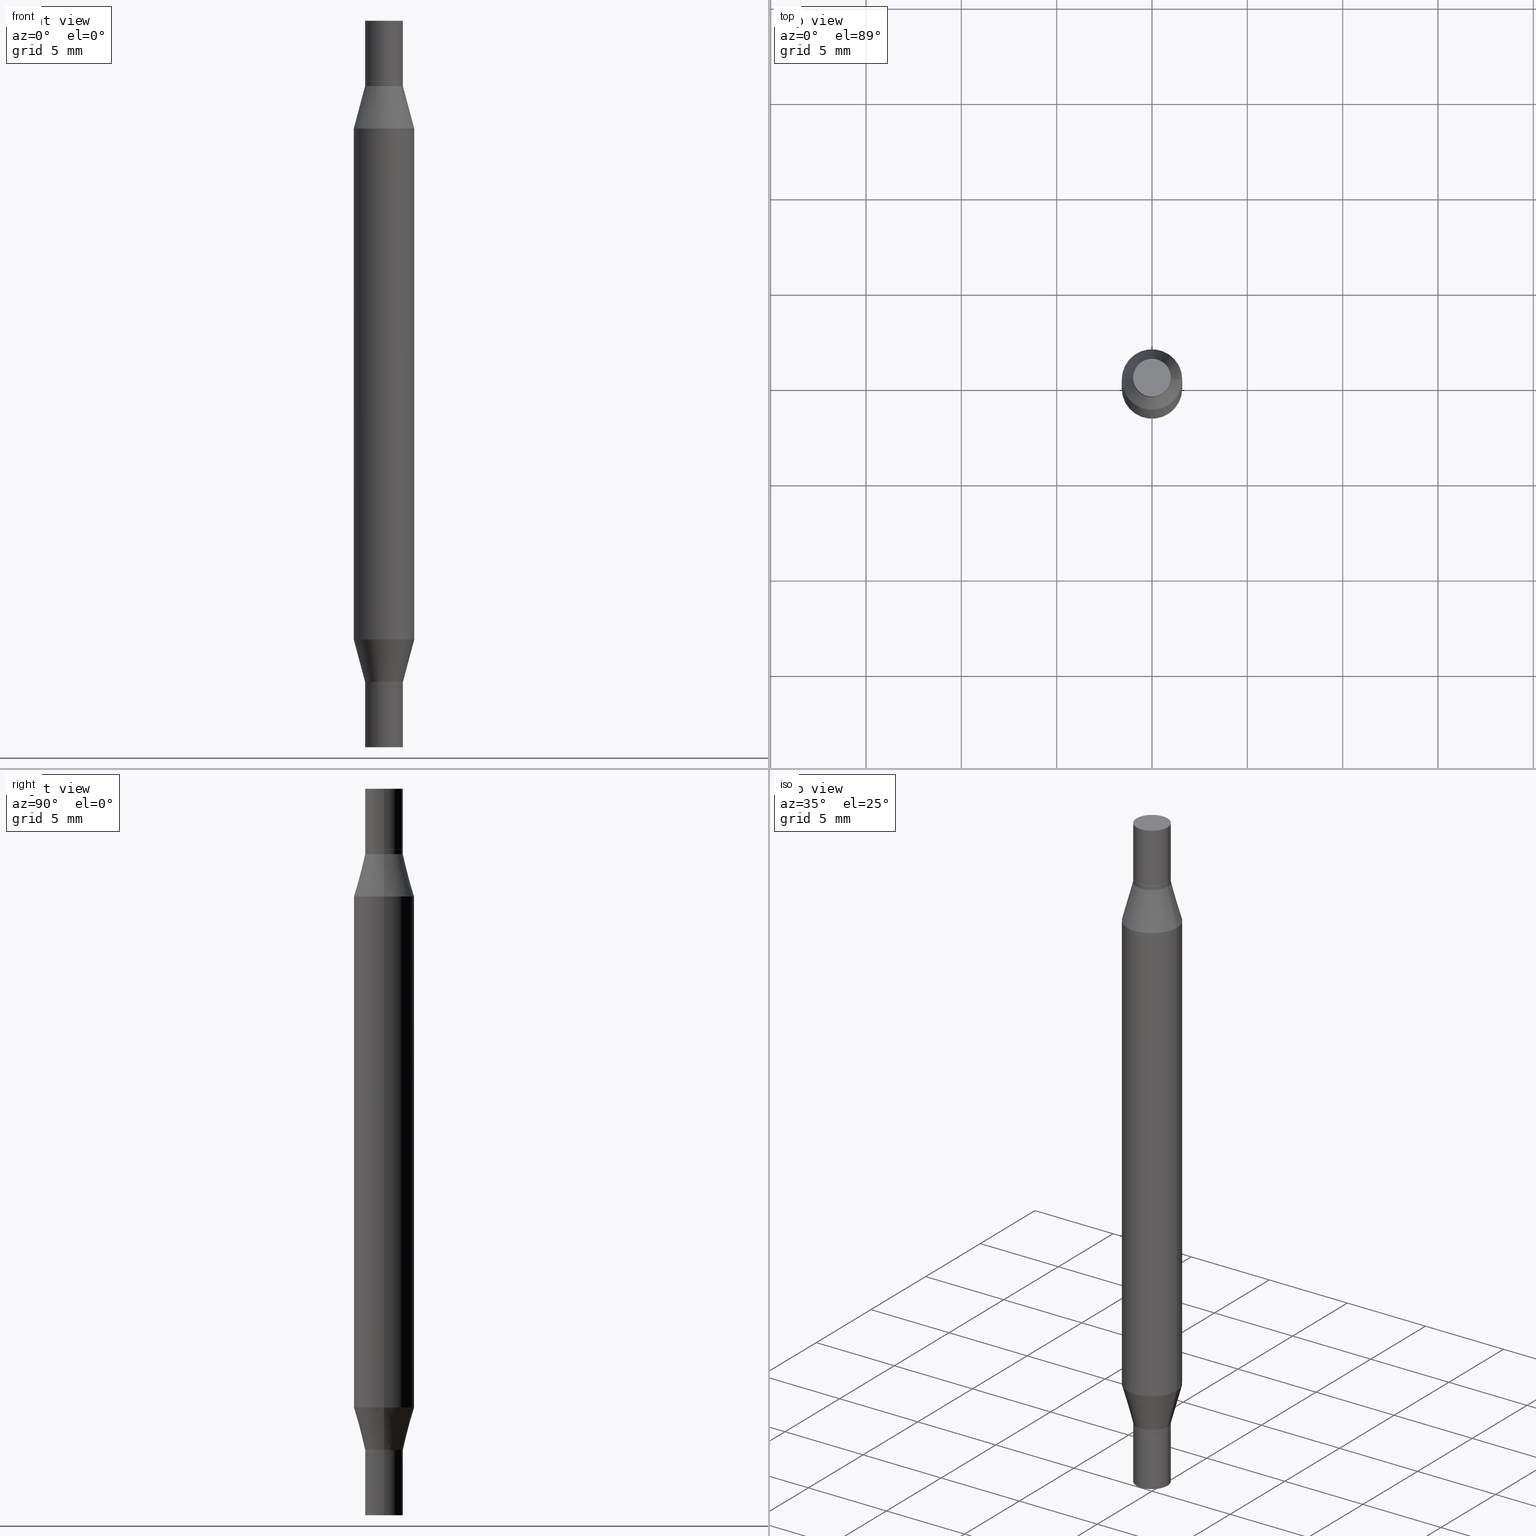
[diagram: canonical four-view strip — front | top / right | iso, engineering-drawing reading convention]
A machine part, canonical four-view strip (front | top / right | iso — engineering-drawing reading convention). The complete STEP part file that produces these views, byte-faithful:
ISO-10303-21;
HEADER;
FILE_DESCRIPTION (( 'STEP AP203' ),
    '1' );
FILE_NAME ('31173.STEP',
    '2024-03-04T15:58:29',
    ( '' ),
    ( '' ),
    'SwSTEP 2.0',
    'SolidWorks 2023',
    '' );
FILE_SCHEMA (( 'CONFIG_CONTROL_DESIGN' ));
ENDSEC;

DATA;
#1 = CYLINDRICAL_SURFACE ( 'NONE', #951, 0.03904999999999992505 ) ;
#2 = DIRECTION ( 'NONE',  ( 2.445468806185136597E-29, 3.491805094961124077E-15, 1.000000000000000000 ) ) ;
#3 = AXIS2_PLACEMENT_3D ( 'NONE', #323, #328, #873 ) ;
#4 = ORIENTED_EDGE ( 'NONE', *, *, #324, .F. ) ;
#5 = EDGE_CURVE ( 'NONE', #273, #198, #828, .T. ) ;
#6 = DIRECTION ( 'NONE',  ( 0.000000000000000000, 1.000000000000000000, -3.491643216902134435E-15 ) ) ;
#7 = CARTESIAN_POINT ( 'NONE',  ( 0.000000000000000000, -5.237464825353201062E-15, -1.499999999999999556 ) ) ;
#8 = DIRECTION ( 'NONE',  ( 0.7071067811865656694, -7.406779323393341342E-15, -0.7071067811865294761 ) ) ;
#9 = EDGE_LOOP ( 'NONE', ( #689, #809, #376, #755 ) ) ;
#10 = FACE_OUTER_BOUND ( 'NONE', #309, .T. ) ;
#11 = EDGE_CURVE ( 'NONE', #909, #675, #471, .T. ) ;
#12 = DIRECTION ( 'NONE',  ( 1.000000000000000000, -6.982962677686267499E-15, 0.000000000000000000 ) ) ;
#13 = CARTESIAN_POINT ( 'NONE',  ( -0.03904999999999992505, 2.774669383143185900E-16, -1.920844152744536784E-30 ) ) ;
#14 = MANIFOLD_SOLID_BREP ( 'Combine1', #271 ) ;
#15 = MANIFOLD_SOLID_BREP ( 'Mirror1[1]', #709 ) ;
#16 = CC_DESIGN_APPROVAL ( #20, ( #782 ) ) ;
#17 = DIRECTION ( 'NONE',  ( -2.445468806185136877E-29, -3.491805094961123683E-15, -1.000000000000000000 ) ) ;
#18 = DIRECTION ( 'NONE',  ( 1.000000000000000000, -6.982962677686262766E-15, 0.000000000000000000 ) ) ;
#19 = DIRECTION ( 'NONE',  ( 2.445468806185136597E-29, 3.491805094961124077E-15, 1.000000000000000000 ) ) ;
#20 = APPROVAL ( #119, 'UNSPECIFIED' ) ;
#21 = AXIS2_PLACEMENT_3D ( 'NONE', #104, #559, #29 ) ;
#22 = VECTOR ( 'NONE', #970, 39.37007874015748143 ) ;
#23 = AXIS2_PLACEMENT_3D ( 'NONE', #404, #157, #618 ) ;
#24 = DIRECTION ( 'NONE',  ( 1.000000000000000000, -6.982962677686266711E-15, 0.000000000000000000 ) ) ;
#25 = DIRECTION ( 'NONE',  ( 2.445468806185136597E-29, 3.491805094961124077E-15, 1.000000000000000000 ) ) ;
#26 = CARTESIAN_POINT ( 'NONE',  ( 3.362519608504562821E-29, -4.362328197816536805E-16, -0.1249999999999993477 ) ) ;
#27 = DIRECTION ( 'NONE',  ( 1.000000000000000000, -6.982962677686265922E-15, 2.260776888683160832E-33 ) ) ;
#28 = DIRECTION ( 'NONE',  ( 1.000000000000000000, -6.982962677686265922E-15, 2.260776888683160832E-33 ) ) ;
#29 = DIRECTION ( 'NONE',  ( 1.000000000000000000, -6.982962677686262766E-15, 0.000000000000000000 ) ) ;
#30 = CARTESIAN_POINT ( 'NONE',  ( 3.362519608504562821E-29, -4.362328197816536805E-16, -0.1249999999999993477 ) ) ;
#31 = CYLINDRICAL_SURFACE ( 'NONE', #905, 0.03905000000000000138 ) ;
#32 = EDGE_CURVE ( 'NONE', #846, #509, #374, .T. ) ;
#33 = CARTESIAN_POINT ( 'NONE',  ( 0.000000000000000000, 0.000000000000000000, 0.000000000000000000 ) ) ;
#34 = DIRECTION ( 'NONE',  ( 1.000000000000000000, -6.982962677686266711E-15, 4.876176775795935232E-29 ) ) ;
#35 = CARTESIAN_POINT ( 'NONE',  ( 0.03904999999999992505, -5.510149517916848596E-15, -1.499999999999999556 ) ) ;
#36 = CYLINDRICAL_SURFACE ( 'NONE', #3, 0.03904999999999992505 ) ;
#37 = CIRCLE ( 'NONE', #368, 0.03905000000000000138 ) ;
#38 = DIRECTION ( 'NONE',  ( 2.445468806185136597E-29, 3.491805094961124077E-15, 1.000000000000000000 ) ) ;
#39 = DIRECTION ( 'NONE',  ( -2.445468806185136597E-29, -3.491805094961124077E-15, -1.000000000000000000 ) ) ;
#40 = ORIENTED_EDGE ( 'NONE', *, *, #11, .F. ) ;
#41 = AXIS2_PLACEMENT_3D ( 'NONE', #632, #335, #492 ) ;
#42 = COORDINATED_UNIVERSAL_TIME_OFFSET ( 5, 0, .BEHIND. ) ;
#43 = EDGE_CURVE ( 'NONE', #509, #591, #588, .T. ) ;
#44 = ORIENTED_EDGE ( 'NONE', *, *, #898, .F. ) ;
#45 = PLANE ( 'NONE',  #600 ) ;
#46 = DIMENSIONAL_EXPONENTS ( 1.000000000000000000, 0.000000000000000000, 0.000000000000000000, 0.000000000000000000, 0.000000000000000000, 0.000000000000000000, 0.000000000000000000 ) ;
#47 = ORIENTED_EDGE ( 'NONE', *, *, #608, .F. ) ;
#48 = PERSON_AND_ORGANIZATION ( #63, #473 ) ;
#49 = ORIENTED_EDGE ( 'NONE', *, *, #708, .T. ) ;
#50 = APPROVAL_PERSON_ORGANIZATION ( #570, #474, #581 ) ;
#51 = ADVANCED_FACE ( 'NONE', ( #827 ), #1, .T. ) ;
#52 = DIRECTION ( 'NONE',  ( 2.445468806185136597E-29, 3.491805094961124077E-15, 1.000000000000000000 ) ) ;
#53 = AXIS2_PLACEMENT_3D ( 'NONE', #74, #459, #12 ) ;
#54 = ORIENTED_EDGE ( 'NONE', *, *, #427, .T. ) ;
#55 = CIRCLE ( 'NONE', #397, 0.06250000000000000000 ) ;
#56 = VECTOR ( 'NONE', #739, 39.37007874015748143 ) ;
#57 = SHAPE_DEFINITION_REPRESENTATION ( #181, #282 ) ;
#58 = VERTEX_POINT ( 'NONE', #613 ) ;
#59 = CIRCLE ( 'NONE', #196, 0.03905000000000000138 ) ;
#60 = CARTESIAN_POINT ( 'NONE',  ( 0.03905000000000000138, -5.510149517916849385E-15, -1.499999999999999556 ) ) ;
#61 = ADVANCED_FACE ( 'NONE', ( #532 ), #620, .T. ) ;
#62 = ORIENTED_EDGE ( 'NONE', *, *, #705, .T. ) ;
#63 = PERSON ( 'UNSPECIFIED', 'UNSPECIFIED', 'UNSPECIFIED', ('UNSPECIFIED'), ('UNSPECIFIED'), ('UNSPECIFIED') ) ;
#64 = DIRECTION ( 'NONE',  ( 1.000000000000000000, -6.982962677686278543E-15, 0.000000000000000000 ) ) ;
#65 = ORIENTED_EDGE ( 'NONE', *, *, #135, .T. ) ;
#66 = EDGE_CURVE ( 'NONE', #846, #835, #223, .T. ) ;
#67 = ORIENTED_EDGE ( 'NONE', *, *, #930, .F. ) ;
#68 = PLANE ( 'NONE',  #317 ) ;
#69 = ORIENTED_EDGE ( 'NONE', *, *, #517, .T. ) ;
#70 = CIRCLE ( 'NONE', #289, 0.03904999999999992505 ) ;
#71 = CARTESIAN_POINT ( 'NONE',  ( 3.362519608504562821E-29, -4.800786840909326507E-15, -1.375000000000000222 ) ) ;
#72 = CIRCLE ( 'NONE', #228, 0.03855000000000000093 ) ;
#73 = ORIENTED_EDGE ( 'NONE', *, *, #863, .T. ) ;
#74 = CARTESIAN_POINT ( 'NONE',  ( 3.361296874101471140E-29, -4.379787223291353929E-16, -0.1254999999999992510 ) ) ;
#75 = DIRECTION ( 'NONE',  ( -2.438088387897960049E-29, 3.491481338843145188E-15, 1.000000000000000000 ) ) ;
#76 = ADVANCED_FACE ( 'NONE', ( #913 ), #753, .T. ) ;
#77 = AXIS2_PLACEMENT_3D ( 'NONE', #928, #558, #553 ) ;
#78 = VERTEX_POINT ( 'NONE', #235 ) ;
#79 = CARTESIAN_POINT ( 'NONE',  ( 3.338064920442711836E-29, -4.765872027520893280E-15, -1.364999999999999991 ) ) ;
#80 = LINE ( 'NONE', #910, #876 ) ;
#81 = EDGE_CURVE ( 'NONE', #78, #296, #480, .T. ) ;
#82 = ORIENTED_EDGE ( 'NONE', *, *, #851, .T. ) ;
#83 = APPLICATION_CONTEXT ( 'configuration controlled 3d designs of mechanical parts and assemblies' ) ;
#84 = DIRECTION ( 'NONE',  ( -2.445468806185136597E-29, 3.491481338843145583E-15, 1.000000000000000000 ) ) ;
#85 = LINE ( 'NONE', #788, #920 ) ;
#86 = LINE ( 'NONE', #673, #667 ) ;
#87 = AXIS2_PLACEMENT_3D ( 'NONE', #178, #866, #263 ) ;
#88 = VECTOR ( 'NONE', #685, 39.37007874015748143 ) ;
#89 = ORIENTED_EDGE ( 'NONE', *, *, #155, .F. ) ;
#90 = ADVANCED_FACE ( 'NONE', ( #304 ), #312, .F. ) ;
#91 = FACE_OUTER_BOUND ( 'NONE', #115, .T. ) ;
#92 = DIRECTION ( 'NONE',  ( 1.000000000000000000, -6.982962677686265922E-15, 4.876176775795935793E-29 ) ) ;
#93 = DIRECTION ( 'NONE',  ( -2.445468806185136597E-29, 3.491481338843145583E-15, 1.000000000000000000 ) ) ;
#94 = ADVANCED_FACE ( 'NONE', ( #166 ), #333, .T. ) ;
#95 = DIRECTION ( 'NONE',  ( -2.445468806185136597E-29, -3.491805094961124077E-15, -1.000000000000000000 ) ) ;
#96 = ORIENTED_EDGE ( 'NONE', *, *, #173, .F. ) ;
#97 = DIRECTION ( 'NONE',  ( 1.000000000000000000, -6.982962677686266711E-15, 0.000000000000000000 ) ) ;
#98 = APPROVAL_PERSON_ORGANIZATION ( #197, #20, #129 ) ;
#99 = LINE ( 'NONE', #325, #794 ) ;
#100 = CARTESIAN_POINT ( 'NONE',  ( 3.362519608504562821E-29, -4.362328197816536805E-16, -0.1249999999999993477 ) ) ;
#101 = DIRECTION ( 'NONE',  ( 0.2588190451025215721, -5.180148453816008779E-15, -0.9659258262890679791 ) ) ;
#102 = DIRECTION ( 'NONE',  ( -2.445468806185136597E-29, 3.491481338843145583E-15, 1.000000000000000000 ) ) ;
#103 = CARTESIAN_POINT ( 'NONE',  ( -0.03904999999999992505, -4.969562378540222955E-15, -1.499999999999999556 ) ) ;
#104 = CARTESIAN_POINT ( 'NONE',  ( 0.000000000000000000, -5.237464825353201062E-15, -1.499999999999999556 ) ) ;
#105 = DIRECTION ( 'NONE',  ( -2.445468806185136597E-29, -3.491805094961124077E-15, -1.000000000000000000 ) ) ;
#106 = EDGE_CURVE ( 'NONE', #372, #452, #218, .T. ) ;
#107 = DIRECTION ( 'NONE',  ( 1.000000000000000000, -6.982962677686266711E-15, 0.000000000000000000 ) ) ;
#108 =( LENGTH_UNIT ( ) NAMED_UNIT ( * ) SI_UNIT ( $, .METRE. ) );
#109 = CARTESIAN_POINT ( 'NONE',  ( -0.06250000000000000000, -1.268895252508620708E-15, -0.7499999999999997780 ) ) ;
#110 = DIRECTION ( 'NONE',  ( -2.445468806185136597E-29, -3.491805094961124077E-15, -1.000000000000000000 ) ) ;
#111 = APPLICATION_PROTOCOL_DEFINITION ( 'international standard', 'config_control_design', 1994, #83 ) ;
#112 = CARTESIAN_POINT ( 'NONE',  ( -0.03904999999999992505, -4.969562378540222955E-15, -1.499999999999999556 ) ) ;
#113 = LINE ( 'NONE', #477, #418 ) ;
#114 = CARTESIAN_POINT ( 'NONE',  ( 0.03905000000000000138, -5.509906700828367289E-15, -1.500000000000000222 ) ) ;
#115 = EDGE_LOOP ( 'NONE', ( #65, #311 ) ) ;
#116 = EDGE_CURVE ( 'NONE', #806, #514, #759, .T. ) ;
#117 = CARTESIAN_POINT ( 'NONE',  ( 1.834101604638851887E-29, -2.618611004132358299E-15, -0.7499999999999997780 ) ) ;
#118 = DIRECTION ( 'NONE',  ( -2.445468806185136877E-29, -3.491805094961123683E-15, -1.000000000000000000 ) ) ;
#119 = APPROVAL_STATUS ( 'not_yet_approved' ) ;
#120 = VERTEX_POINT ( 'NONE', #377 ) ;
#121 = FACE_OUTER_BOUND ( 'NONE', #233, .T. ) ;
#122 = ORIENTED_EDGE ( 'NONE', *, *, #660, .F. ) ;
#123 = EDGE_CURVE ( 'NONE', #806, #835, #85, .T. ) ;
#124 = CIRCLE ( 'NONE', #293, 0.03904999999999992505 ) ;
#125 = DATE_AND_TIME ( #877, #300 ) ;
#126 = ORIENTED_EDGE ( 'NONE', *, *, #963, .T. ) ;
#127 = CYLINDRICAL_SURFACE ( 'NONE', #512, 0.03904999999999992505 ) ;
#128 = ORIENTED_EDGE ( 'NONE', *, *, #427, .F. ) ;
#129 = APPROVAL_ROLE ( '' ) ;
#130 = VERTEX_POINT ( 'NONE', #490 ) ;
#131 = CARTESIAN_POINT ( 'NONE',  ( -0.03904999999999992505, -4.521574161925585674E-15, -1.374500000000000277 ) ) ;
#132 = CIRCLE ( 'NONE', #695, 0.03855000000000000093 ) ;
#133 = EDGE_LOOP ( 'NONE', ( #89, #842, #54, #661 ) ) ;
#134 = CARTESIAN_POINT ( 'NONE',  ( 0.000000000000000000, 0.000000000000000000, 0.000000000000000000 ) ) ;
#135 = EDGE_CURVE ( 'NONE', #140, #164, #694, .T. ) ;
#136 = EDGE_LOOP ( 'NONE', ( #387, #899 ) ) ;
#137 = ORIENTED_EDGE ( 'NONE', *, *, #43, .T. ) ;
#138 = CARTESIAN_POINT ( 'NONE',  ( -0.03855000000000000093, -1.717606219675611579E-16, -0.1249999999999993477 ) ) ;
#139 = ORIENTED_EDGE ( 'NONE', *, *, #187, .F. ) ;
#140 = VERTEX_POINT ( 'NONE', #942 ) ;
#141 = EDGE_CURVE ( 'NONE', #645, #885, #288, .T. ) ;
#142 = CIRCLE ( 'NONE', #743, 0.03905000000000000138 ) ;
#143 = AXIS2_PLACEMENT_3D ( 'NONE', #390, #241, #310 ) ;
#144 = CARTESIAN_POINT ( 'NONE',  ( -0.03905000000000000138, -4.969562378540222166E-15, -1.499999999999999556 ) ) ;
#145 = DIRECTION ( 'NONE',  ( 0.7071067811865656694, -7.406779323393341342E-15, -0.7071067811865294761 ) ) ;
#146 = AXIS2_PLACEMENT_3D ( 'NONE', #479, #172, #855 ) ;
#147 = ORIENTED_EDGE ( 'NONE', *, *, #854, .F. ) ;
#148 = EDGE_CURVE ( 'NONE', #767, #284, #496, .T. ) ;
#149 = DIRECTION ( 'NONE',  ( -2.445468806185136597E-29, -3.491805094961124077E-15, -1.000000000000000000 ) ) ;
#150 = CARTESIAN_POINT ( 'NONE',  ( 3.362519608504562821E-29, -4.362328197816536805E-16, -0.1249999999999993477 ) ) ;
#151 = EDGE_LOOP ( 'NONE', ( #362, #734, #367, #306 ) ) ;
#152 = CARTESIAN_POINT ( 'NONE',  ( 0.000000000000000000, -5.237464825353201062E-15, -1.499999999999999556 ) ) ;
#153 = DIRECTION ( 'NONE',  ( 1.000000000000000000, -6.982962677686262766E-15, 0.000000000000000000 ) ) ;
#154 = CARTESIAN_POINT ( 'NONE',  ( 0.06250000000000000000, -5.673899992708591942E-15, -1.499999999999999556 ) ) ;
#155 = EDGE_CURVE ( 'NONE', #372, #130, #37, .T. ) ;
#156 = VERTEX_POINT ( 'NONE', #856 ) ;
#157 = DIRECTION ( 'NONE',  ( 2.445468806185136597E-29, 3.491805094961124077E-15, 1.000000000000000000 ) ) ;
#158 = ORIENTED_EDGE ( 'NONE', *, *, #741, .F. ) ;
#159 = CLOSED_SHELL ( 'NONE', ( #363, #505, #882, #808 ) ) ;
#160 = DIRECTION ( 'NONE',  ( 2.445468806185136597E-29, 3.491805094961124077E-15, 1.000000000000000000 ) ) ;
#161 = AXIS2_PLACEMENT_3D ( 'NONE', #481, #563, #929 ) ;
#162 = VECTOR ( 'NONE', #145, 39.37007874015748143 ) ;
#163 = CC_DESIGN_PERSON_AND_ORGANIZATION_ASSIGNMENT ( #426, #565, ( #431 ) ) ;
#164 = VERTEX_POINT ( 'NONE', #109 ) ;
#165 = DIRECTION ( 'NONE',  ( -2.445468806185136877E-29, -3.491805094961123683E-15, -1.000000000000000000 ) ) ;
#166 = FACE_OUTER_BOUND ( 'NONE', #428, .T. ) ;
#167 = DIRECTION ( 'NONE',  ( 1.000000000000000000, -6.982962677686262766E-15, 0.000000000000000000 ) ) ;
#168 = AXIS2_PLACEMENT_3D ( 'NONE', #860, #182, #562 ) ;
#169 = FACE_OUTER_BOUND ( 'NONE', #280, .T. ) ;
#170 = DIRECTION ( 'NONE',  ( 1.000000000000000000, -6.982962677686267499E-15, 0.000000000000000000 ) ) ;
#171 = FACE_OUTER_BOUND ( 'NONE', #133, .T. ) ;
#172 = DIRECTION ( 'NONE',  ( -2.445468806185136597E-29, 3.491481338843145583E-15, 1.000000000000000000 ) ) ;
#173 = EDGE_CURVE ( 'NONE', #915, #909, #550, .T. ) ;
#174 = CARTESIAN_POINT ( 'NONE',  ( 3.362519608504562821E-29, -4.362328197816536805E-16, -0.1249999999999993477 ) ) ;
#175 = PLANE ( 'NONE',  #730 ) ;
#176 = VECTOR ( 'NONE', #853, 39.37007874015748143 ) ;
#177 = AXIS2_PLACEMENT_3D ( 'NONE', #378, #467, #167 ) ;
#178 = CARTESIAN_POINT ( 'NONE',  ( 3.338064920442711836E-29, -4.711508707312662841E-16, -0.1349999999999995093 ) ) ;
#179 = FACE_OUTER_BOUND ( 'NONE', #136, .T. ) ;
#180 = ADVANCED_FACE ( 'NONE', ( #248 ), #414, .T. ) ;
#181 = PRODUCT_DEFINITION_SHAPE ( 'NONE', 'NONE',  #782 ) ;
#182 = DIRECTION ( 'NONE',  ( -2.445468806185136597E-29, 3.491481338843145583E-15, 1.000000000000000000 ) ) ;
#183 = CARTESIAN_POINT ( 'NONE',  ( 3.124045826058680346E-29, -7.767417506063242664E-16, -0.2225165914374896692 ) ) ;
#184 = DIRECTION ( 'NONE',  ( 1.000000000000000000, -6.982962677686267499E-15, 0.000000000000000000 ) ) ;
#185 = PERSON_AND_ORGANIZATION ( #63, #473 ) ;
#186 = DIRECTION ( 'NONE',  ( -2.445468806185136597E-29, -3.491805094961124077E-15, -1.000000000000000000 ) ) ;
#187 = EDGE_CURVE ( 'NONE', #296, #78, #382, .T. ) ;
#188 = DIRECTION ( 'NONE',  ( -0.000000000000000000, -3.491643216902134830E-15, -1.000000000000000000 ) ) ;
#189 = CARTESIAN_POINT ( 'NONE',  ( 3.362519608504562821E-29, -4.800786840909326507E-15, -1.375000000000000222 ) ) ;
#190 = DATE_AND_TIME ( #342, #596 ) ;
#191 = CYLINDRICAL_SURFACE ( 'NONE', #858, 0.03905000000000000138 ) ;
#192 = AXIS2_PLACEMENT_3D ( 'NONE', #267, #250, #548 ) ;
#193 = EDGE_CURVE ( 'NONE', #911, #156, #242, .T. ) ;
#194 = CONICAL_SURFACE ( 'NONE', #654, 0.03904999999999992505, 0.2617993877991502960 ) ;
#195 = ORIENTED_EDGE ( 'NONE', *, *, #978, .F. ) ;
#196 = AXIS2_PLACEMENT_3D ( 'NONE', #245, #775, #698 ) ;
#197 = PERSON_AND_ORGANIZATION ( #63, #473 ) ;
#198 = VERTEX_POINT ( 'NONE', #408 ) ;
#199 = LINE ( 'NONE', #60, #448 ) ;
#200 = VERTEX_POINT ( 'NONE', #697 ) ;
#201 = APPLICATION_CONTEXT ( 'configuration controlled 3d designs of mechanical parts and assemblies' ) ;
#202 = PERSON_AND_ORGANIZATION ( #63, #473 ) ;
#203 = ORIENTED_EDGE ( 'NONE', *, *, #978, .T. ) ;
#204 = CARTESIAN_POINT ( 'NONE',  ( 0.06250000000000000000, -1.213176917961717218E-15, -0.2225165914374896692 ) ) ;
#205 = ORIENTED_EDGE ( 'NONE', *, *, #772, .T. ) ;
#206 = PERSON_AND_ORGANIZATION_ROLE ( 'creator' ) ;
#207 = ORIENTED_EDGE ( 'NONE', *, *, #187, .T. ) ;
#208 = DIRECTION ( 'NONE',  ( -0.7071067811865656694, 7.493145998870420424E-15, 0.7071067811865294761 ) ) ;
#209 = AXIS2_PLACEMENT_3D ( 'NONE', #389, #609, #153 ) ;
#210 = EDGE_LOOP ( 'NONE', ( #44, #966, #205, #946 ) ) ;
#211 = VECTOR ( 'NONE', #977, 39.37007874015748143 ) ;
#212 = VERTEX_POINT ( 'NONE', #253 ) ;
#213 = DIRECTION ( 'NONE',  ( -2.445468806185136597E-29, 3.491481338843145583E-15, 1.000000000000000000 ) ) ;
#214 = EDGE_LOOP ( 'NONE', ( #606, #597 ) ) ;
#215 = DIRECTION ( 'NONE',  ( 1.000000000000000000, -6.982962677686266711E-15, 0.000000000000000000 ) ) ;
#216 = EDGE_CURVE ( 'NONE', #911, #915, #476, .T. ) ;
#217 = ORIENTED_EDGE ( 'NONE', *, *, #116, .T. ) ;
#218 = LINE ( 'NONE', #144, #844 ) ;
#219 = CARTESIAN_POINT ( 'NONE',  ( 0.03855000000000000093, -7.054260310064592437E-16, -0.1249999999999993477 ) ) ;
#220 = CC_DESIGN_APPROVAL ( #826, ( #431 ) ) ;
#221 = VERTEX_POINT ( 'NONE', #710 ) ;
#222 = EDGE_CURVE ( 'NONE', #221, #297, #272, .T. ) ;
#223 = CIRCLE ( 'NONE', #678, 0.03904999999999992505 ) ;
#224 = CIRCLE ( 'NONE', #572, 0.03904999999999992505 ) ;
#225 = ORIENTED_EDGE ( 'NONE', *, *, #279, .T. ) ;
#226 = CARTESIAN_POINT ( 'NONE',  ( 2.726846925636822941E-16, 0.03904999999999519966, -1.375000000000000222 ) ) ;
#227 = DIRECTION ( 'NONE',  ( 1.000000000000000000, -6.982962677686267499E-15, 0.000000000000000000 ) ) ;
#228 = AXIS2_PLACEMENT_3D ( 'NONE', #931, #475, #768 ) ;
#229 = ORIENTED_EDGE ( 'NONE', *, *, #43, .F. ) ;
#230 = EDGE_CURVE ( 'NONE', #835, #591, #321, .T. ) ;
#231 = DIRECTION ( 'NONE',  ( 1.000000000000000000, -6.982962677686254878E-15, 0.000000000000000000 ) ) ;
#232 = DIRECTION ( 'NONE',  ( 0.2588190451025215721, -5.180148453816008779E-15, -0.9659258262890679791 ) ) ;
#233 = EDGE_LOOP ( 'NONE', ( #139, #539, #502, #593 ) ) ;
#234 = CARTESIAN_POINT ( 'NONE',  ( 3.361296874101471140E-29, -4.799041100239905004E-15, -1.374500000000000277 ) ) ;
#235 = CARTESIAN_POINT ( 'NONE',  ( 0.03904999999999992505, -7.106634148927820404E-16, -0.1254999999999992510 ) ) ;
#236 = CARTESIAN_POINT ( 'NONE',  ( -0.03904999999999992505, -1.866623497172225345E-16, -0.1349999999999995093 ) ) ;
#237 = ADVANCED_FACE ( 'NONE', ( #554 ), #623, .T. ) ;
#238 = EDGE_LOOP ( 'NONE', ( #49, #276 ) ) ;
#239 = CARTESIAN_POINT ( 'NONE',  ( 0.03905000000000000138, -7.089175123453024480E-16, -0.1249999999999993477 ) ) ;
#240 = DIRECTION ( 'NONE',  ( -2.445468806185136597E-29, 3.491481338843145583E-15, 1.000000000000000000 ) ) ;
#241 = DIRECTION ( 'NONE',  ( -0.000000000000000000, -3.491643216902134830E-15, -1.000000000000000000 ) ) ;
#242 = CIRCLE ( 'NONE', #875, 0.03855000000000000093 ) ;
#243 = FACE_OUTER_BOUND ( 'NONE', #9, .T. ) ;
#244 = CARTESIAN_POINT ( 'NONE',  ( 3.668203209277704895E-29, 2.428170884860868470E-19, 5.463695987328526437E-16 ) ) ;
#245 = CARTESIAN_POINT ( 'NONE',  ( 3.668203209277704895E-29, -5.237222008264718177E-15, -1.500000000000000222 ) ) ;
#246 = EDGE_CURVE ( 'NONE', #350, #891, #405, .T. ) ;
#247 = PLANE ( 'NONE',  #746 ) ;
#248 = FACE_OUTER_BOUND ( 'NONE', #499, .T. ) ;
#249 = DIRECTION ( 'NONE',  ( 1.000000000000000000, -6.982962677686265922E-15, 0.000000000000000000 ) ) ;
#250 = DIRECTION ( 'NONE',  ( -2.445468806185136597E-29, -3.491805094961124077E-15, -1.000000000000000000 ) ) ;
#251 = ADVANCED_FACE ( 'NONE', ( #259 ), #703, .T. ) ;
#252 = CARTESIAN_POINT ( 'NONE',  ( 0.03905000000000000138, -5.073471533472974831E-15, -1.375000000000000222 ) ) ;
#253 = CARTESIAN_POINT ( 'NONE',  ( 0.03904999999999992505, -7.438355632949145092E-16, -0.1349999999999995093 ) ) ;
#254 = CARTESIAN_POINT ( 'NONE',  ( 3.362519608504562821E-29, -4.362328197816536805E-16, -0.1249999999999993477 ) ) ;
#255 = DIRECTION ( 'NONE',  ( 2.445468806185136597E-29, 3.491805094961124077E-15, 1.000000000000000000 ) ) ;
#256 = CONICAL_SURFACE ( 'NONE', #417, 0.03855000000000000093, 0.7853981633974739252 ) ;
#257 = AXIS2_PLACEMENT_3D ( 'NONE', #614, #75, #375 ) ;
#258 = DIRECTION ( 'NONE',  ( 0.000000000000000000, 0.000000000000000000, 1.000000000000000000 ) ) ;
#259 = FACE_OUTER_BOUND ( 'NONE', #747, .T. ) ;
#260 = DIRECTION ( 'NONE',  ( 1.000000000000000000, -6.982962677686265922E-15, 4.876176775795935793E-29 ) ) ;
#261 = APPROVAL_ROLE ( '' ) ;
#262 = FACE_OUTER_BOUND ( 'NONE', #355, .T. ) ;
#263 = DIRECTION ( 'NONE',  ( 1.000000000000000000, -6.982962677686267499E-15, 0.000000000000000000 ) ) ;
#264 = CARTESIAN_POINT ( 'NONE',  ( 0.000000000000000000, -5.237464825353201062E-15, -1.499999999999999556 ) ) ;
#265 = DATE_AND_TIME ( #789, #348 ) ;
#266 = EDGE_CURVE ( 'NONE', #668, #595, #326, .T. ) ;
#267 = CARTESIAN_POINT ( 'NONE',  ( 0.000000000000000000, -5.237464825353201062E-15, -1.499999999999999556 ) ) ;
#268 = ORIENTED_EDGE ( 'NONE', *, *, #950, .T. ) ;
#269 = PERSON_AND_ORGANIZATION ( #63, #473 ) ;
#270 = CARTESIAN_POINT ( 'NONE',  ( -0.03904999999999992505, -2.032484239182884731E-16, -0.1349999999999995093 ) ) ;
#271 = CLOSED_SHELL ( 'NONE', ( #440, #51, #455, #61, #868, #76, #615, #501, #699, #717, #94, #585, #791, #407, #839, #748 ) ) ;
#272 = CIRCLE ( 'NONE', #589, 0.03855000000000000093 ) ;
#273 = VERTEX_POINT ( 'NONE', #647 ) ;
#274 = AXIS2_PLACEMENT_3D ( 'NONE', #26, #322, #624 ) ;
#275 = APPROVAL_DATE_TIME ( #723, #826 ) ;
#276 = ORIENTED_EDGE ( 'NONE', *, *, #295, .T. ) ;
#277 = DIRECTION ( 'NONE',  ( -2.445468806185136597E-29, -3.491805094961124077E-15, -1.000000000000000000 ) ) ;
#278 = ORIENTED_EDGE ( 'NONE', *, *, #670, .F. ) ;
#279 = EDGE_CURVE ( 'NONE', #212, #909, #224, .T. ) ;
#280 = EDGE_LOOP ( 'NONE', ( #444, #722 ) ) ;
#281 = DIRECTION ( 'NONE',  ( -2.445468806185136877E-29, -3.491805094961123683E-15, -1.000000000000000000 ) ) ;
#282 = ADVANCED_BREP_SHAPE_REPRESENTATION ( '31173', ( #666, #15, #643, #637, #14, #339 ), #974 ) ;
#283 = EDGE_LOOP ( 'NONE', ( #571, #751, #82, #657 ) ) ;
#284 = VERTEX_POINT ( 'NONE', #497 ) ;
#285 = PLANE ( 'NONE',  #354 ) ;
#286 = VECTOR ( 'NONE', #765, 39.37007874015748143 ) ;
#287 = ORIENTED_EDGE ( 'NONE', *, *, #815, .F. ) ;
#288 = CIRCLE ( 'NONE', #87, 0.03904999999999992505 ) ;
#289 = AXIS2_PLACEMENT_3D ( 'NONE', #973, #299, #227 ) ;
#290 = FACE_OUTER_BOUND ( 'NONE', #803, .T. ) ;
#291 = ADVANCED_FACE ( 'NONE', ( #720 ), #175, .F. ) ;
#292 = VERTEX_POINT ( 'NONE', #715 ) ;
#293 = AXIS2_PLACEMENT_3D ( 'NONE', #756, #607, #912 ) ;
#294 = DIRECTION ( 'NONE',  ( 1.000000000000000000, -6.982962677686266711E-15, 4.876176775795935232E-29 ) ) ;
#295 = EDGE_CURVE ( 'NONE', #120, #891, #142, .T. ) ;
#296 = VERTEX_POINT ( 'NONE', #776 ) ;
#297 = VERTEX_POINT ( 'NONE', #786 ) ;
#298 = DIRECTION ( 'NONE',  ( -2.445468806185136597E-29, 3.491481338843145583E-15, 1.000000000000000000 ) ) ;
#299 = DIRECTION ( 'NONE',  ( 2.445468806185136597E-29, 3.491805094961124077E-15, 1.000000000000000000 ) ) ;
#300 = LOCAL_TIME ( 10, 58, 29.00000000000000000, #656 ) ;
#301 = ORIENTED_EDGE ( 'NONE', *, *, #173, .T. ) ;
#302 = AXIS2_PLACEMENT_3D ( 'NONE', #466, #849, #976 ) ;
#303 = AXIS2_PLACEMENT_3D ( 'NONE', #867, #19, #547 ) ;
#304 = FACE_OUTER_BOUND ( 'NONE', #238, .T. ) ;
#305 = DIRECTION ( 'NONE',  ( 2.445468806185136597E-29, 3.491805094961124077E-15, 1.000000000000000000 ) ) ;
#306 = ORIENTED_EDGE ( 'NONE', *, *, #538, .F. ) ;
#307 = ADVANCED_FACE ( 'NONE', ( #484 ), #524, .T. ) ;
#308 = DIRECTION ( 'NONE',  ( -2.445468806185136597E-29, -3.491805094961124077E-15, -1.000000000000000000 ) ) ;
#309 = EDGE_LOOP ( 'NONE', ( #425, #67, #380, #980 ) ) ;
#310 = DIRECTION ( 'NONE',  ( 0.000000000000000000, 1.000000000000000000, -4.370956789862821150E-15 ) ) ;
#311 = ORIENTED_EDGE ( 'NONE', *, *, #602, .T. ) ;
#312 = PLANE ( 'NONE',  #599 ) ;
#313 = DIRECTION ( 'NONE',  ( -2.445468806185136877E-29, 3.491481338843145188E-15, 1.000000000000000000 ) ) ;
#314 = ORIENTED_EDGE ( 'NONE', *, *, #641, .F. ) ;
#315 = AXIS2_PLACEMENT_3D ( 'NONE', #932, #706, #170 ) ;
#316 = CARTESIAN_POINT ( 'NONE',  ( 2.726846925636822941E-16, 0.03904999999999957117, -0.1249999999999996253 ) ) ;
#317 = AXIS2_PLACEMENT_3D ( 'NONE', #503, #888, #725 ) ;
#318 = EDGE_CURVE ( 'NONE', #284, #767, #55, .T. ) ;
#319 = VECTOR ( 'NONE', #17, 39.37007874015748143 ) ;
#320 = CARTESIAN_POINT ( 'NONE',  ( 0.000000000000000000, -2.618732412676602503E-15, -0.7499999999999997780 ) ) ;
#321 = LINE ( 'NONE', #938, #830 ) ;
#322 = DIRECTION ( 'NONE',  ( 2.445468806185136597E-29, 3.491805094961124077E-15, 1.000000000000000000 ) ) ;
#323 = CARTESIAN_POINT ( 'NONE',  ( 0.000000000000000000, -5.237464825353201062E-15, -1.499999999999999556 ) ) ;
#324 = EDGE_CURVE ( 'NONE', #58, #350, #540, .T. ) ;
#325 = CARTESIAN_POINT ( 'NONE',  ( -0.06250000000000000000, -4.808683700492480339E-15, -1.499999999999999556 ) ) ;
#326 = LINE ( 'NONE', #628, #679 ) ;
#327 = FACE_OUTER_BOUND ( 'NONE', #671, .T. ) ;
#328 = DIRECTION ( 'NONE',  ( -2.445468806185136597E-29, -3.491805094961124077E-15, -1.000000000000000000 ) ) ;
#329 = ADVANCED_FACE ( 'NONE', ( #790 ), #45, .F. ) ;
#330 =( CONVERSION_BASED_UNIT ( 'INCH', #870 ) LENGTH_UNIT ( ) NAMED_UNIT ( #46 ) );
#331 = DIRECTION ( 'NONE',  ( 2.445468806185136597E-29, 3.491805094961124077E-15, 1.000000000000000000 ) ) ;
#332 = FACE_OUTER_BOUND ( 'NONE', #972, .T. ) ;
#333 = CONICAL_SURFACE ( 'NONE', #890, 0.03904999999999992505, 0.2617993877991502960 ) ;
#334 = CONICAL_SURFACE ( 'NONE', #892, 0.03904999999999992505, 0.2617993877991502960 ) ;
#335 = DIRECTION ( 'NONE',  ( -2.445468806185136597E-29, 3.491481338843145583E-15, 1.000000000000000000 ) ) ;
#336 = CC_DESIGN_PERSON_AND_ORGANIZATION_ASSIGNMENT ( #269, #728, ( #431 ) ) ;
#337 = DIRECTION ( 'NONE',  ( 0.2588190451025215721, 1.565188264969619995E-15, 0.9659258262890679791 ) ) ;
#338 = DATE_TIME_ROLE ( 'creation_date' ) ;
#339 = AXIS2_PLACEMENT_3D ( 'NONE', #33, #258, #865 ) ;
#340 = ORIENTED_EDGE ( 'NONE', *, *, #674, .F. ) ;
#341 = DIRECTION ( 'NONE',  ( -2.445468806185136877E-29, 3.491481338843145188E-15, 1.000000000000000000 ) ) ;
#342 = CALENDAR_DATE ( 2024, 4, 3 ) ;
#343 = PRODUCT_RELATED_PRODUCT_CATEGORY ( 'detail', '', ( #933 ) ) ;
#344 = ORIENTED_EDGE ( 'NONE', *, *, #854, .T. ) ;
#345 = CYLINDRICAL_SURFACE ( 'NONE', #192, 0.03904999999999992505 ) ;
#346 = ORIENTED_EDGE ( 'NONE', *, *, #266, .F. ) ;
#347 = DESIGN_CONTEXT ( 'detailed design', #201, 'design' ) ;
#348 = LOCAL_TIME ( 10, 58, 29.00000000000000000, #349 ) ;
#349 = COORDINATED_UNIVERSAL_TIME_OFFSET ( 5, 0, .BEHIND. ) ;
#350 = VERTEX_POINT ( 'NONE', #114 ) ;
#351 = DIRECTION ( 'NONE',  ( 1.000000000000000000, -6.982962677686265922E-15, 2.260776888683160832E-33 ) ) ;
#352 = ADVANCED_FACE ( 'NONE', ( #704 ), #345, .T. ) ;
#353 = AXIS2_PLACEMENT_3D ( 'NONE', #557, #625, #864 ) ;
#354 = AXIS2_PLACEMENT_3D ( 'NONE', #810, #665, #351 ) ;
#355 = EDGE_LOOP ( 'NONE', ( #456, #441, #727, #346 ) ) ;
#356 = CIRCLE ( 'NONE', #23, 0.03904999999999992505 ) ;
#357 = FACE_OUTER_BOUND ( 'NONE', #214, .T. ) ;
#358 = CC_DESIGN_DATE_AND_TIME_ASSIGNMENT ( #265, #338, ( #782 ) ) ;
#359 = ORIENTED_EDGE ( 'NONE', *, *, #963, .F. ) ;
#360 = EDGE_LOOP ( 'NONE', ( #601, #878, #840, #344 ) ) ;
#361 = DIRECTION ( 'NONE',  ( 1.000000000000000000, -6.982962677686254878E-15, 0.000000000000000000 ) ) ;
#362 = ORIENTED_EDGE ( 'NONE', *, *, #193, .F. ) ;
#363 = ADVANCED_FACE ( 'NONE', ( #171 ), #31, .T. ) ;
#364 = ORIENTED_EDGE ( 'NONE', *, *, #821, .T. ) ;
#365 = CARTESIAN_POINT ( 'NONE',  ( 3.361296874101471140E-29, -4.379787223291353929E-16, -0.1254999999999992510 ) ) ;
#366 = AXIS2_PLACEMENT_3D ( 'NONE', #924, #861, #34 ) ;
#367 = ORIENTED_EDGE ( 'NONE', *, *, #445, .T. ) ;
#368 = AXIS2_PLACEMENT_3D ( 'NONE', #244, #331, #871 ) ;
#369 = ADVANCED_FACE ( 'NONE', ( #121 ), #36, .T. ) ;
#370 = ORIENTED_EDGE ( 'NONE', *, *, #626, .T. ) ;
#371 = DIRECTION ( 'NONE',  ( 1.000000000000000000, -6.982962677686278543E-15, 0.000000000000000000 ) ) ;
#372 = VERTEX_POINT ( 'NONE', #566 ) ;
#373 = CIRCLE ( 'NONE', #927, 0.03904999999999992505 ) ;
#374 = LINE ( 'NONE', #393, #650 ) ;
#375 = DIRECTION ( 'NONE',  ( 1.000000000000000000, -6.982962677686265922E-15, 4.876176775795935793E-29 ) ) ;
#376 = ORIENTED_EDGE ( 'NONE', *, *, #567, .T. ) ;
#377 = CARTESIAN_POINT ( 'NONE',  ( -0.03905000000000000138, -4.741537486272703801E-15, -1.375000000000000222 ) ) ;
#378 = CARTESIAN_POINT ( 'NONE',  ( 0.000000000000000000, -5.237464825353201062E-15, -1.499999999999999556 ) ) ;
#379 = EDGE_CURVE ( 'NONE', #675, #403, #777, .T. ) ;
#380 = ORIENTED_EDGE ( 'NONE', *, *, #674, .T. ) ;
#381 = CLOSED_SHELL ( 'NONE', ( #527, #580, #180, #90 ) ) ;
#382 = CIRCLE ( 'NONE', #315, 0.03904999999999992505 ) ;
#383 = DIRECTION ( 'NONE',  ( 1.000000000000000000, -6.982962677686254878E-15, 0.000000000000000000 ) ) ;
#384 = CONICAL_SURFACE ( 'NONE', #895, 0.03855000000000000093, 0.7853981633974739252 ) ;
#385 = CARTESIAN_POINT ( 'NONE',  ( 0.000000000000000000, 0.000000000000000000, 0.000000000000000000 ) ) ;
#386 = CARTESIAN_POINT ( 'NONE',  ( -0.06250000000000000000, -4.808683700492480339E-15, -1.499999999999999556 ) ) ;
#387 = ORIENTED_EDGE ( 'NONE', *, *, #5, .F. ) ;
#388 = CARTESIAN_POINT ( 'NONE',  ( -0.03905000000000000138, 2.774669383143191324E-16, -1.920844152744540637E-30 ) ) ;
#389 = CARTESIAN_POINT ( 'NONE',  ( 0.000000000000000000, -5.237464825353201062E-15, -1.499999999999999556 ) ) ;
#390 = CARTESIAN_POINT ( 'NONE',  ( 1.834101604638851887E-29, -2.618611004132358299E-15, -0.7499999999999997780 ) ) ;
#391 = FACE_OUTER_BOUND ( 'NONE', #672, .T. ) ;
#392 = ADVANCED_FACE ( 'NONE', ( #262 ), #191, .T. ) ;
#393 = CARTESIAN_POINT ( 'NONE',  ( -0.03904999999999992505, -4.488405089206574740E-15, -1.364999999999999991 ) ) ;
#394 = CARTESIAN_POINT ( 'NONE',  ( 3.668203209277704895E-29, 2.428170884860868470E-19, 5.463695987328526437E-16 ) ) ;
#395 = CC_DESIGN_SECURITY_CLASSIFICATION ( #824, ( #431 ) ) ;
#396 = DIRECTION ( 'NONE',  ( -2.438088387897959208E-29, -3.491805094961123683E-15, -1.000000000000000000 ) ) ;
#397 = AXIS2_PLACEMENT_3D ( 'NONE', #700, #255, #107 ) ;
#398 = DIRECTION ( 'NONE',  ( 1.000000000000000000, -6.982962677686254878E-15, 0.000000000000000000 ) ) ;
#399 = EDGE_CURVE ( 'NONE', #403, #675, #482, .T. ) ;
#400 = CIRCLE ( 'NONE', #143, 0.06250000000000000000 ) ;
#401 = CARTESIAN_POINT ( 'NONE',  ( 3.362519608504562821E-29, -4.362328197816536805E-16, -0.1249999999999993477 ) ) ;
#402 = VECTOR ( 'NONE', #841, 39.37007874015748143 ) ;
#403 = VERTEX_POINT ( 'NONE', #204 ) ;
#404 = CARTESIAN_POINT ( 'NONE',  ( 3.361296874101471140E-29, -4.379787223291353929E-16, -0.1254999999999992510 ) ) ;
#405 = LINE ( 'NONE', #781, #793 ) ;
#406 = CARTESIAN_POINT ( 'NONE',  ( 3.338064920442711836E-29, -4.711508707312662841E-16, -0.1349999999999995093 ) ) ;
#407 = ADVANCED_FACE ( 'NONE', ( #290 ), #127, .T. ) ;
#408 = CARTESIAN_POINT ( 'NONE',  ( -0.03855000000000000093, -4.524223389099696086E-15, -1.375000000000000222 ) ) ;
#409 = CARTESIAN_POINT ( 'NONE',  ( 0.06250000000000000000, -1.213176917961717218E-15, -0.2225165914374896692 ) ) ;
#410 = PERSON_AND_ORGANIZATION_ROLE ( 'classification_officer' ) ;
#411 = DIRECTION ( 'NONE',  ( -2.438088387897959208E-29, -3.491805094961123683E-15, -1.000000000000000000 ) ) ;
#412 = ADVANCED_FACE ( 'NONE', ( #592 ), #256, .T. ) ;
#413 = MECHANICAL_CONTEXT ( 'NONE', #83, 'mechanical' ) ;
#414 = CYLINDRICAL_SURFACE ( 'NONE', #366, 0.03905000000000000138 ) ;
#415 = DIRECTION ( 'NONE',  ( 1.000000000000000000, -6.982962677686265922E-15, 0.000000000000000000 ) ) ;
#416 = AXIS2_PLACEMENT_3D ( 'NONE', #749, #528, #833 ) ;
#417 = AXIS2_PLACEMENT_3D ( 'NONE', #520, #277, #507 ) ;
#418 = VECTOR ( 'NONE', #101, 39.37007874015748143 ) ;
#419 = EDGE_LOOP ( 'NONE', ( #576, #584, #137, #314 ) ) ;
#420 =( NAMED_UNIT ( * ) SI_UNIT ( $, .STERADIAN. ) SOLID_ANGLE_UNIT ( ) );
#421 = DIRECTION ( 'NONE',  ( -0.7071067811865656694, 2.382025595312421833E-15, -0.7071067811865294761 ) ) ;
#422 = PERSON_AND_ORGANIZATION ( #63, #473 ) ;
#423 = CARTESIAN_POINT ( 'NONE',  ( 3.362519608504562821E-29, -4.800786840909326507E-15, -1.375000000000000222 ) ) ;
#424 = CIRCLE ( 'NONE', #41, 0.03904999999999992505 ) ;
#425 = ORIENTED_EDGE ( 'NONE', *, *, #469, .F. ) ;
#426 = PERSON_AND_ORGANIZATION ( #63, #473 ) ;
#427 = EDGE_CURVE ( 'NONE', #452, #952, #814, .T. ) ;
#428 = EDGE_LOOP ( 'NONE', ( #40, #611, #968, #442 ) ) ;
#429 = CARTESIAN_POINT ( 'NONE',  ( 3.362519608504562821E-29, -4.800786840909326507E-15, -1.375000000000000222 ) ) ;
#430 = ORIENTED_EDGE ( 'NONE', *, *, #434, .T. ) ;
#431 = PRODUCT_DEFINITION_FORMATION_WITH_SPECIFIED_SOURCE ( 'ANY', '', #933, .NOT_KNOWN. ) ;
#432 = APPROVAL_DATE_TIME ( #947, #20 ) ;
#433 = ORIENTED_EDGE ( 'NONE', *, *, #434, .F. ) ;
#434 = EDGE_CURVE ( 'NONE', #221, #296, #736, .T. ) ;
#435 = LINE ( 'NONE', #658, #682 ) ;
#436 = CIRCLE ( 'NONE', #590, 0.03905000000000000138 ) ;
#437 = ORIENTED_EDGE ( 'NONE', *, *, #295, .F. ) ;
#438 = ORIENTED_EDGE ( 'NONE', *, *, #631, .F. ) ;
#439 = FACE_OUTER_BOUND ( 'NONE', #525, .T. ) ;
#440 = ADVANCED_FACE ( 'NONE', ( #439 ), #334, .T. ) ;
#441 = ORIENTED_EDGE ( 'NONE', *, *, #511, .T. ) ;
#442 = ORIENTED_EDGE ( 'NONE', *, *, #399, .T. ) ;
#443 = DIRECTION ( 'NONE',  ( -0.7071067811865656694, 2.382025595312421833E-15, -0.7071067811865294761 ) ) ;
#444 = ORIENTED_EDGE ( 'NONE', *, *, #733, .T. ) ;
#445 = EDGE_CURVE ( 'NONE', #915, #200, #761, .T. ) ;
#446 = DIRECTION ( 'NONE',  ( -2.445468806185136597E-29, 3.491481338843145583E-15, 1.000000000000000000 ) ) ;
#447 = ORIENTED_EDGE ( 'NONE', *, *, #135, .F. ) ;
#448 = VECTOR ( 'NONE', #281, 39.37007874015748143 ) ;
#449 = CIRCLE ( 'NONE', #274, 0.03905000000000000138 ) ;
#450 = DIRECTION ( 'NONE',  ( -2.445468806185136877E-29, -3.491805094961123683E-15, -1.000000000000000000 ) ) ;
#451 = LINE ( 'NONE', #758, #526 ) ;
#452 = VERTEX_POINT ( 'NONE', #742 ) ;
#453 = CARTESIAN_POINT ( 'NONE',  ( -0.03904999999999992505, -2.032484239182884731E-16, -0.1349999999999995093 ) ) ;
#454 = DIRECTION ( 'NONE',  ( 0.7071067811865656694, -2.468850131082446387E-15, 0.7071067811865294761 ) ) ;
#455 = ADVANCED_FACE ( 'NONE', ( #578 ), #953, .T. ) ;
#456 = ORIENTED_EDGE ( 'NONE', *, *, #705, .F. ) ;
#457 = DIRECTION ( 'NONE',  ( 0.000000000000000000, 3.491643216902134435E-15, 1.000000000000000000 ) ) ;
#458 = ORIENTED_EDGE ( 'NONE', *, *, #81, .T. ) ;
#459 = DIRECTION ( 'NONE',  ( 2.445468806185136597E-29, 3.491805094961124077E-15, 1.000000000000000000 ) ) ;
#460 = CARTESIAN_POINT ( 'NONE',  ( 0.03904999999999992505, -5.510149517916848596E-15, -1.499999999999999556 ) ) ;
#461 = EDGE_CURVE ( 'NONE', #198, #273, #132, .T. ) ;
#462 = ORIENTED_EDGE ( 'NONE', *, *, #821, .F. ) ;
#463 = AXIS2_PLACEMENT_3D ( 'NONE', #117, #188, #784 ) ;
#464 = CARTESIAN_POINT ( 'NONE',  ( 0.03904999999999992505, -7.438355632949145092E-16, -0.1349999999999995093 ) ) ;
#465 = AXIS2_PLACEMENT_3D ( 'NONE', #264, #105, #494 ) ;
#466 = CARTESIAN_POINT ( 'NONE',  ( 3.362519608504562821E-29, -4.800786840909326507E-15, -1.375000000000000222 ) ) ;
#467 = DIRECTION ( 'NONE',  ( -2.445468806185136597E-29, -3.491805094961124077E-15, -1.000000000000000000 ) ) ;
#468 = EDGE_LOOP ( 'NONE', ( #462, #128 ) ) ;
#469 = EDGE_CURVE ( 'NONE', #645, #284, #965, .T. ) ;
#470 = LINE ( 'NONE', #388, #504 ) ;
#471 = LINE ( 'NONE', #453, #286 ) ;
#472 = FACE_OUTER_BOUND ( 'NONE', #907, .T. ) ;
#473 = ORGANIZATION ( 'UNSPECIFIED', 'UNSPECIFIED', '' ) ;
#474 = APPROVAL ( #640, 'UNSPECIFIED' ) ;
#475 = DIRECTION ( 'NONE',  ( 2.445468806185136597E-29, 3.491805094961124077E-15, 1.000000000000000000 ) ) ;
#476 = LINE ( 'NONE', #773, #969 ) ;
#477 = CARTESIAN_POINT ( 'NONE',  ( 0.03904999999999992505, -7.438355632949145092E-16, -0.1349999999999995093 ) ) ;
#478 = DIRECTION ( 'NONE',  ( -1.000000000000000000, 6.982962677686265922E-15, -2.260776888683160832E-33 ) ) ;
#479 = CARTESIAN_POINT ( 'NONE',  ( 3.362519608504562821E-29, -4.800786840909326507E-15, -1.375000000000000222 ) ) ;
#480 = CIRCLE ( 'NONE', #53, 0.03904999999999992505 ) ;
#481 = CARTESIAN_POINT ( 'NONE',  ( 0.000000000000000000, -5.237464825353201062E-15, -1.499999999999999556 ) ) ;
#482 = CIRCLE ( 'NONE', #555, 0.06250000000000000000 ) ;
#483 = AXIS2_PLACEMENT_3D ( 'NONE', #150, #754, #605 ) ;
#484 = FACE_OUTER_BOUND ( 'NONE', #735, .T. ) ;
#485 = AXIS2_PLACEMENT_3D ( 'NONE', #152, #848, #24 ) ;
#486 = DIRECTION ( 'NONE',  ( -2.445468806185136877E-29, -3.491805094961123683E-15, -1.000000000000000000 ) ) ;
#487 = DIRECTION ( 'NONE',  ( -2.438088387897960049E-29, 3.491481338843145188E-15, 1.000000000000000000 ) ) ;
#488 = EDGE_CURVE ( 'NONE', #130, #952, #199, .T. ) ;
#489 = DIRECTION ( 'NONE',  ( -2.445468806185136597E-29, 3.491481338843145583E-15, 1.000000000000000000 ) ) ;
#490 = CARTESIAN_POINT ( 'NONE',  ( 0.03905000000000000138, -2.724418754751626287E-16, 5.463695987328526437E-16 ) ) ;
#491 = DIRECTION ( 'NONE',  ( 1.000000000000000000, -6.982962677686265922E-15, 0.000000000000000000 ) ) ;
#492 = DIRECTION ( 'NONE',  ( 1.000000000000000000, -6.982962677686254878E-15, 0.000000000000000000 ) ) ;
#493 = DIRECTION ( 'NONE',  ( 1.000000000000000000, -6.982962677686266711E-15, 0.000000000000000000 ) ) ;
#494 = DIRECTION ( 'NONE',  ( 1.000000000000000000, -6.982962677686254878E-15, 0.000000000000000000 ) ) ;
#495 = AXIS2_PLACEMENT_3D ( 'NONE', #676, #298, #18 ) ;
#496 = CIRCLE ( 'NONE', #796, 0.06250000000000000000 ) ;
#497 = CARTESIAN_POINT ( 'NONE',  ( -0.06250000000000000000, -3.479606257456047271E-16, -0.2225165914374896692 ) ) ;
#498 = AXIS2_PLACEMENT_3D ( 'NONE', #770, #2, #97 ) ;
#499 = EDGE_LOOP ( 'NONE', ( #663, #738, #506, #437 ) ) ;
#500 = UNCERTAINTY_MEASURE_WITH_UNIT (LENGTH_MEASURE( 1.000000000000000082E-05 ), #330, 'distance_accuracy_value', 'NONE');
#501 = ADVANCED_FACE ( 'NONE', ( #893 ), #68, .F. ) ;
#502 = ORIENTED_EDGE ( 'NONE', *, *, #141, .T. ) ;
#503 = CARTESIAN_POINT ( 'NONE',  ( 3.362519608504562821E-29, -4.362328197816536805E-16, -0.1249999999999993477 ) ) ;
#504 = VECTOR ( 'NONE', #535, 39.37007874015748143 ) ;
#505 = ADVANCED_FACE ( 'NONE', ( #357 ), #285, .F. ) ;
#506 = ORIENTED_EDGE ( 'NONE', *, *, #246, .T. ) ;
#507 = DIRECTION ( 'NONE',  ( 1.000000000000000000, -6.982962677686265922E-15, 0.000000000000000000 ) ) ;
#508 = ORIENTED_EDGE ( 'NONE', *, *, #318, .F. ) ;
#509 = VERTEX_POINT ( 'NONE', #652 ) ;
#510 = CARTESIAN_POINT ( 'NONE',  ( 0.000000000000000000, 0.000000000000000000, 0.000000000000000000 ) ) ;
#511 = EDGE_CURVE ( 'NONE', #686, #292, #957, .T. ) ;
#512 = AXIS2_PLACEMENT_3D ( 'NONE', #510, #213, #804 ) ;
#513 = AXIS2_PLACEMENT_3D ( 'NONE', #134, #93, #294 ) ;
#514 = VERTEX_POINT ( 'NONE', #131 ) ;
#515 = ORIENTED_EDGE ( 'NONE', *, *, #32, .F. ) ;
#516 = DIRECTION ( 'NONE',  ( 1.000000000000000000, -6.982962677686266711E-15, 0.000000000000000000 ) ) ;
#517 = EDGE_CURVE ( 'NONE', #198, #514, #435, .T. ) ;
#518 = ORIENTED_EDGE ( 'NONE', *, *, #608, .T. ) ;
#519 = CIRCLE ( 'NONE', #168, 0.06250000000000000000 ) ;
#520 = CARTESIAN_POINT ( 'NONE',  ( 3.362519608504562821E-29, -4.362328197816536805E-16, -0.1249999999999993477 ) ) ;
#521 = ORIENTED_EDGE ( 'NONE', *, *, #575, .T. ) ;
#522 = ORIENTED_EDGE ( 'NONE', *, *, #445, .F. ) ;
#523 = DIRECTION ( 'NONE',  ( -2.445468806185136597E-29, -3.491805094961124077E-15, -1.000000000000000000 ) ) ;
#524 = CONICAL_SURFACE ( 'NONE', #616, 0.03855000000000000093, 0.7853981633974739252 ) ;
#525 = EDGE_LOOP ( 'NONE', ( #126, #960, #195, #582 ) ) ;
#526 = VECTOR ( 'NONE', #8, 39.37007874015748143 ) ;
#527 = ADVANCED_FACE ( 'NONE', ( #961 ), #816, .T. ) ;
#528 = DIRECTION ( 'NONE',  ( -2.445468806185136597E-29, 3.491481338843145583E-15, 1.000000000000000000 ) ) ;
#529 = CARTESIAN_POINT ( 'NONE',  ( 0.03905000000000000138, -7.089175123453024480E-16, -0.1249999999999993477 ) ) ;
#530 = ORIENTED_EDGE ( 'NONE', *, *, #531, .T. ) ;
#531 = EDGE_CURVE ( 'NONE', #200, #212, #918, .T. ) ;
#532 = FACE_OUTER_BOUND ( 'NONE', #419, .T. ) ;
#533 = CARTESIAN_POINT ( 'NONE',  ( -0.06250000000000000000, -3.479606257456047271E-16, -0.2225165914374896692 ) ) ;
#534 = EDGE_LOOP ( 'NONE', ( #515, #716, #669, #229 ) ) ;
#535 = DIRECTION ( 'NONE',  ( -2.445468806185136877E-29, 3.491481338843145188E-15, 1.000000000000000000 ) ) ;
#536 = EDGE_LOOP ( 'NONE', ( #73, #642 ) ) ;
#537 = CARTESIAN_POINT ( 'NONE',  ( -0.03905000000000000138, 4.990744546639402167E-17, 5.463695987328533339E-16 ) ) ;
#538 = EDGE_CURVE ( 'NONE', #156, #200, #451, .T. ) ;
#539 = ORIENTED_EDGE ( 'NONE', *, *, #898, .T. ) ;
#540 = CIRCLE ( 'NONE', #845, 0.03905000000000000138 ) ;
#541 = CYLINDRICAL_SURFACE ( 'NONE', #485, 0.03905000000000000138 ) ;
#542 = DIRECTION ( 'NONE',  ( 1.000000000000000000, -6.982962677686254878E-15, 0.000000000000000000 ) ) ;
#543 = FACE_OUTER_BOUND ( 'NONE', #151, .T. ) ;
#544 = CC_DESIGN_PERSON_AND_ORGANIZATION_ASSIGNMENT ( #202, #812, ( #933 ) ) ;
#545 = LINE ( 'NONE', #103, #402 ) ;
#546 = DIRECTION ( 'NONE',  ( 2.445468806185136597E-29, 3.491805094961124077E-15, 1.000000000000000000 ) ) ;
#547 = DIRECTION ( 'NONE',  ( 1.000000000000000000, -6.982962677686266711E-15, 0.000000000000000000 ) ) ;
#548 = DIRECTION ( 'NONE',  ( 1.000000000000000000, -6.982962677686254878E-15, 0.000000000000000000 ) ) ;
#549 = FACE_OUTER_BOUND ( 'NONE', #881, .T. ) ;
#550 = LINE ( 'NONE', #112, #176 ) ;
#551 = CARTESIAN_POINT ( 'NONE',  ( 3.338064920442711836E-29, -4.765872027520893280E-15, -1.364999999999999991 ) ) ;
#552 = DIRECTION ( 'NONE',  ( 1.000000000000000000, -6.982962677686266711E-15, 0.000000000000000000 ) ) ;
#553 = DIRECTION ( 'NONE',  ( 1.000000000000000000, -6.982962677686266711E-15, 0.000000000000000000 ) ) ;
#554 = FACE_OUTER_BOUND ( 'NONE', #283, .T. ) ;
#555 = AXIS2_PLACEMENT_3D ( 'NONE', #583, #880, #820 ) ;
#556 = DIRECTION ( 'NONE',  ( 1.000000000000000000, -6.982962677686266711E-15, 0.000000000000000000 ) ) ;
#557 = CARTESIAN_POINT ( 'NONE',  ( 3.124045826058680346E-29, -7.767417506063242664E-16, -0.2225165914374896692 ) ) ;
#558 = DIRECTION ( 'NONE',  ( -2.445468806185136597E-29, -3.491805094961124077E-15, -1.000000000000000000 ) ) ;
#559 = DIRECTION ( 'NONE',  ( -2.445468806185136597E-29, -3.491805094961124077E-15, -1.000000000000000000 ) ) ;
#560 = CARTESIAN_POINT ( 'NONE',  ( 3.338064920442711836E-29, -4.711508707312662841E-16, -0.1349999999999995093 ) ) ;
#561 = CARTESIAN_POINT ( 'NONE',  ( 0.000000000000000000, -5.237464825353201062E-15, -1.499999999999999556 ) ) ;
#562 = DIRECTION ( 'NONE',  ( 1.000000000000000000, -6.982962677686262766E-15, 0.000000000000000000 ) ) ;
#563 = DIRECTION ( 'NONE',  ( -2.445468806185136597E-29, -3.491805094961124077E-15, -1.000000000000000000 ) ) ;
#564 = FACE_OUTER_BOUND ( 'NONE', #468, .T. ) ;
#565 = PERSON_AND_ORGANIZATION_ROLE ( 'creator' ) ;
#566 = CARTESIAN_POINT ( 'NONE',  ( -0.03905000000000000138, 4.990744546639402167E-17, 5.463695987328533339E-16 ) ) ;
#567 = EDGE_CURVE ( 'NONE', #273, #806, #86, .T. ) ;
#568 = ORIENTED_EDGE ( 'NONE', *, *, #222, .F. ) ;
#569 = CLOSED_SHELL ( 'NONE', ( #392, #329, #958, #291 ) ) ;
#570 = PERSON_AND_ORGANIZATION ( #63, #473 ) ;
#571 = ORIENTED_EDGE ( 'NONE', *, *, #908, .F. ) ;
#572 = AXIS2_PLACEMENT_3D ( 'NONE', #406, #636, #783 ) ;
#573 = DIRECTION ( 'NONE',  ( 2.445468806185136597E-29, 3.491805094961124077E-15, 1.000000000000000000 ) ) ;
#574 = AXIS2_PLACEMENT_3D ( 'NONE', #551, #712, #398 ) ;
#575 = EDGE_CURVE ( 'NONE', #297, #78, #750, .T. ) ;
#576 = ORIENTED_EDGE ( 'NONE', *, *, #379, .F. ) ;
#577 = EDGE_LOOP ( 'NONE', ( #287, #4 ) ) ;
#578 = FACE_OUTER_BOUND ( 'NONE', #811, .T. ) ;
#579 = EDGE_LOOP ( 'NONE', ( #792, #268, #975, #798 ) ) ;
#580 = ADVANCED_FACE ( 'NONE', ( #850 ), #610, .F. ) ;
#581 = APPROVAL_ROLE ( '' ) ;
#582 = ORIENTED_EDGE ( 'NONE', *, *, #230, .F. ) ;
#583 = CARTESIAN_POINT ( 'NONE',  ( 3.124045826058680346E-29, -7.767417506063242664E-16, -0.2225165914374896692 ) ) ;
#584 = ORIENTED_EDGE ( 'NONE', *, *, #681, .T. ) ;
#585 = ADVANCED_FACE ( 'NONE', ( #472 ), #594, .T. ) ;
#586 = ORIENTED_EDGE ( 'NONE', *, *, #531, .F. ) ;
#587 = DIRECTION ( 'NONE',  ( -2.445468806185136597E-29, 3.491481338843145583E-15, 1.000000000000000000 ) ) ;
#588 = CIRCLE ( 'NONE', #495, 0.06250000000000000000 ) ;
#589 = AXIS2_PLACEMENT_3D ( 'NONE', #100, #25, #633 ) ;
#590 = AXIS2_PLACEMENT_3D ( 'NONE', #189, #943, #556 ) ;
#591 = VERTEX_POINT ( 'NONE', #598 ) ;
#592 = FACE_OUTER_BOUND ( 'NONE', #655, .T. ) ;
#593 = ORIENTED_EDGE ( 'NONE', *, *, #772, .F. ) ;
#594 = CYLINDRICAL_SURFACE ( 'NONE', #177, 0.06250000000000000000 ) ;
#595 = VERTEX_POINT ( 'NONE', #529 ) ;
#596 = LOCAL_TIME ( 10, 58, 29.00000000000000000, #872 ) ;
#597 = ORIENTED_EDGE ( 'NONE', *, *, #155, .T. ) ;
#598 = CARTESIAN_POINT ( 'NONE',  ( 0.06250000000000000000, -4.896744649033128608E-15, -1.277483408562509970 ) ) ;
#599 = AXIS2_PLACEMENT_3D ( 'NONE', #226, #604, #917 ) ;
#600 = AXIS2_PLACEMENT_3D ( 'NONE', #800, #411, #27 ) ;
#601 = ORIENTED_EDGE ( 'NONE', *, *, #216, .F. ) ;
#602 = EDGE_CURVE ( 'NONE', #164, #140, #400, .T. ) ;
#603 = CIRCLE ( 'NONE', #483, 0.03905000000000000138 ) ;
#604 = DIRECTION ( 'NONE',  ( 2.438088387897960049E-29, -3.491481338843145188E-15, -1.000000000000000000 ) ) ;
#605 = DIRECTION ( 'NONE',  ( 1.000000000000000000, -6.982962677686266711E-15, 0.000000000000000000 ) ) ;
#606 = ORIENTED_EDGE ( 'NONE', *, *, #631, .T. ) ;
#607 = DIRECTION ( 'NONE',  ( 2.445468806185136597E-29, 3.491805094961124077E-15, 1.000000000000000000 ) ) ;
#608 = EDGE_CURVE ( 'NONE', #514, #846, #900, .T. ) ;
#609 = DIRECTION ( 'NONE',  ( -2.445468806185136597E-29, -3.491805094961124077E-15, -1.000000000000000000 ) ) ;
#610 = PLANE ( 'NONE',  #257 ) ;
#611 = ORIENTED_EDGE ( 'NONE', *, *, #279, .F. ) ;
#612 = CARTESIAN_POINT ( 'NONE',  ( 0.03904999999999992505, -5.038556720084541604E-15, -1.364999999999999991 ) ) ;
#613 = CARTESIAN_POINT ( 'NONE',  ( -0.03905000000000000138, -4.741537486272703801E-15, -1.500000000000000222 ) ) ;
#614 = CARTESIAN_POINT ( 'NONE',  ( 3.576687321579069994E-29, -5.368277968210015545E-15, -1.500000000000000222 ) ) ;
#615 = ADVANCED_FACE ( 'NONE', ( #543 ), #831, .T. ) ;
#616 = AXIS2_PLACEMENT_3D ( 'NONE', #401, #110, #491 ) ;
#617 = AXIS2_PLACEMENT_3D ( 'NONE', #365, #573, #662 ) ;
#618 = DIRECTION ( 'NONE',  ( 1.000000000000000000, -6.982962677686267499E-15, 0.000000000000000000 ) ) ;
#619 = AXIS2_PLACEMENT_3D ( 'NONE', #779, #95, #923 ) ;
#620 = CYLINDRICAL_SURFACE ( 'NONE', #209, 0.06250000000000000000 ) ;
#621 = DIRECTION ( 'NONE',  ( 2.438088387897959208E-29, 3.491805094961123683E-15, 1.000000000000000000 ) ) ;
#622 = CARTESIAN_POINT ( 'NONE',  ( 3.338064920442711836E-29, -4.711508707312662841E-16, -0.1349999999999995093 ) ) ;
#623 = CYLINDRICAL_SURFACE ( 'NONE', #161, 0.06250000000000000000 ) ;
#624 = DIRECTION ( 'NONE',  ( 1.000000000000000000, -6.982962677686266711E-15, 0.000000000000000000 ) ) ;
#625 = DIRECTION ( 'NONE',  ( 2.445468806185136597E-29, 3.491805094961124077E-15, 1.000000000000000000 ) ) ;
#626 = EDGE_CURVE ( 'NONE', #668, #686, #653, .T. ) ;
#627 = CARTESIAN_POINT ( 'NONE',  ( -0.03904999999999992505, -1.700762755161561275E-16, -0.1254999999999992510 ) ) ;
#628 = CARTESIAN_POINT ( 'NONE',  ( 0.03905000000000000138, -5.510149517916849385E-15, -1.499999999999999556 ) ) ;
#629 = DIRECTION ( 'NONE',  ( 2.445468806185136597E-29, 3.491805094961124077E-15, 1.000000000000000000 ) ) ;
#630 = DIRECTION ( 'NONE',  ( 2.438088387897959208E-29, 3.491805094961123683E-15, 1.000000000000000000 ) ) ;
#631 = EDGE_CURVE ( 'NONE', #130, #372, #778, .T. ) ;
#632 = CARTESIAN_POINT ( 'NONE',  ( 3.338064920442711836E-29, -4.765872027520893280E-15, -1.364999999999999991 ) ) ;
#633 = DIRECTION ( 'NONE',  ( 1.000000000000000000, -6.982962677686265922E-15, 0.000000000000000000 ) ) ;
#634 = VECTOR ( 'NONE', #443, 39.37007874015748143 ) ;
#635 = LINE ( 'NONE', #35, #921 ) ;
#636 = DIRECTION ( 'NONE',  ( 2.445468806185136597E-29, 3.491805094961124077E-15, 1.000000000000000000 ) ) ;
#637 = MANIFOLD_SOLID_BREP ( 'Mirror1[4]', #569 ) ;
#638 = DIRECTION ( 'NONE',  ( -2.445468806185136877E-29, 3.491481338843145188E-15, 1.000000000000000000 ) ) ;
#639 = FACE_OUTER_BOUND ( 'NONE', #360, .T. ) ;
#640 = APPROVAL_STATUS ( 'not_yet_approved' ) ;
#641 = EDGE_CURVE ( 'NONE', #403, #591, #914, .T. ) ;
#642 = ORIENTED_EDGE ( 'NONE', *, *, #193, .T. ) ;
#643 = MANIFOLD_SOLID_BREP ( 'Mirror1[3]', #159 ) ;
#644 = DATE_TIME_ROLE ( 'classification_date' ) ;
#645 = VERTEX_POINT ( 'NONE', #236 ) ;
#646 = CC_DESIGN_DATE_AND_TIME_ASSIGNMENT ( #190, #644, ( #824 ) ) ;
#647 = CARTESIAN_POINT ( 'NONE',  ( 0.03855000000000000093, -5.069980052134131824E-15, -1.375000000000000222 ) ) ;
#648 = LOCAL_TIME ( 10, 58, 29.00000000000000000, #954 ) ;
#649 = ORIENTED_EDGE ( 'NONE', *, *, #266, .T. ) ;
#650 = VECTOR ( 'NONE', #902, 39.37007874015748143 ) ;
#651 = ORIENTED_EDGE ( 'NONE', *, *, #141, .F. ) ;
#652 = CARTESIAN_POINT ( 'NONE',  ( -0.06250000000000000000, -2.189829879271637577E-15, -1.277483408562509970 ) ) ;
#653 = CIRCLE ( 'NONE', #498, 0.03905000000000000138 ) ;
#654 = AXIS2_PLACEMENT_3D ( 'NONE', #560, #785, #184 ) ;
#655 = EDGE_LOOP ( 'NONE', ( #433, #737, #521, #458 ) ) ;
#656 = COORDINATED_UNIVERSAL_TIME_OFFSET ( 5, 0, .BEHIND. ) ;
#657 = ORIENTED_EDGE ( 'NONE', *, *, #602, .F. ) ;
#658 = CARTESIAN_POINT ( 'NONE',  ( -0.03855000000000000093, -4.526872616273807287E-15, -1.375000000000000222 ) ) ;
#659 = ORIENTED_EDGE ( 'NONE', *, *, #123, .F. ) ;
#660 = EDGE_CURVE ( 'NONE', #909, #212, #70, .T. ) ;
#661 = ORIENTED_EDGE ( 'NONE', *, *, #488, .F. ) ;
#662 = DIRECTION ( 'NONE',  ( 1.000000000000000000, -6.982962677686267499E-15, 0.000000000000000000 ) ) ;
#663 = ORIENTED_EDGE ( 'NONE', *, *, #950, .F. ) ;
#664 = ORIENTED_EDGE ( 'NONE', *, *, #116, .F. ) ;
#665 = DIRECTION ( 'NONE',  ( -2.438088387897959208E-29, -3.491805094961123683E-15, -1.000000000000000000 ) ) ;
#666 = MANIFOLD_SOLID_BREP ( 'Body-Move/Copy2[1]', #381 ) ;
#667 = VECTOR ( 'NONE', #454, 39.37007874015748143 ) ;
#668 = VERTEX_POINT ( 'NONE', #834 ) ;
#669 = ORIENTED_EDGE ( 'NONE', *, *, #230, .T. ) ;
#670 = EDGE_CURVE ( 'NONE', #292, #595, #603, .T. ) ;
#671 = EDGE_LOOP ( 'NONE', ( #96, #147, #530, #225 ) ) ;
#672 = EDGE_LOOP ( 'NONE', ( #729, #901, #649, #948 ) ) ;
#673 = CARTESIAN_POINT ( 'NONE',  ( 0.03855000000000000093, -5.069980052134131824E-15, -1.375000000000000222 ) ) ;
#674 = EDGE_CURVE ( 'NONE', #885, #767, #80, .T. ) ;
#675 = VERTEX_POINT ( 'NONE', #533 ) ;
#676 = CARTESIAN_POINT ( 'NONE',  ( 3.124045826058680346E-29, -4.460309481677736938E-15, -1.277483408562509970 ) ) ;
#677 = CARTESIAN_POINT ( 'NONE',  ( 3.362519608504562821E-29, -4.362328197816536805E-16, -0.1249999999999993477 ) ) ;
#678 = AXIS2_PLACEMENT_3D ( 'NONE', #79, #240, #231 ) ;
#679 = VECTOR ( 'NONE', #486, 39.37007874015748143 ) ;
#680 = ORIENTED_EDGE ( 'NONE', *, *, #908, .T. ) ;
#681 = EDGE_CURVE ( 'NONE', #675, #509, #838, .T. ) ;
#682 = VECTOR ( 'NONE', #208, 39.37007874015748143 ) ;
#683 = FACE_OUTER_BOUND ( 'NONE', #818, .T. ) ;
#684 = DIRECTION ( 'NONE',  ( -2.445468806185136597E-29, 3.491481338843145583E-15, 1.000000000000000000 ) ) ;
#685 = DIRECTION ( 'NONE',  ( -2.445468806185136877E-29, -3.491805094961123683E-15, -1.000000000000000000 ) ) ;
#686 = VERTEX_POINT ( 'NONE', #537 ) ;
#687 = EDGE_CURVE ( 'NONE', #595, #292, #732, .T. ) ;
#688 = DIRECTION ( 'NONE',  ( 1.000000000000000000, -6.982962677686267499E-15, 0.000000000000000000 ) ) ;
#689 = ORIENTED_EDGE ( 'NONE', *, *, #517, .F. ) ;
#690 = DIRECTION ( 'NONE',  ( 1.000000000000000000, -6.982962677686265922E-15, 0.000000000000000000 ) ) ;
#691 = CYLINDRICAL_SURFACE ( 'NONE', #77, 0.03905000000000000138 ) ;
#692 = DIRECTION ( 'NONE',  ( 1.000000000000000000, -6.982962677686267499E-15, 0.000000000000000000 ) ) ;
#693 = PLANE ( 'NONE',  #879 ) ;
#694 = CIRCLE ( 'NONE', #463, 0.06250000000000000000 ) ;
#695 = AXIS2_PLACEMENT_3D ( 'NONE', #429, #731, #64 ) ;
#696 = CARTESIAN_POINT ( 'NONE',  ( -0.03855000000000000093, -1.709184487418586180E-16, -0.1249999999999993477 ) ) ;
#697 = CARTESIAN_POINT ( 'NONE',  ( 0.03904999999999992505, -7.106634148927820404E-16, -0.1254999999999992510 ) ) ;
#698 = DIRECTION ( 'NONE',  ( 1.000000000000000000, -6.982962677686266711E-15, 0.000000000000000000 ) ) ;
#699 = ADVANCED_FACE ( 'NONE', ( #639 ), #384, .T. ) ;
#700 = CARTESIAN_POINT ( 'NONE',  ( 3.124045826058680346E-29, -7.767417506063242664E-16, -0.2225165914374896692 ) ) ;
#701 = EDGE_LOOP ( 'NONE', ( #801, #278 ) ) ;
#702 = LINE ( 'NONE', #916, #319 ) ;
#703 = CYLINDRICAL_SURFACE ( 'NONE', #21, 0.06250000000000000000 ) ;
#704 = FACE_OUTER_BOUND ( 'NONE', #210, .T. ) ;
#705 = EDGE_CURVE ( 'NONE', #686, #668, #847, .T. ) ;
#706 = DIRECTION ( 'NONE',  ( 2.445468806185136597E-29, 3.491805094961124077E-15, 1.000000000000000000 ) ) ;
#707 = CARTESIAN_POINT ( 'NONE',  ( 2.726846925636822941E-16, 0.03904999999999957117, -0.1249999999999996253 ) ) ;
#708 = EDGE_CURVE ( 'NONE', #891, #120, #436, .T. ) ;
#709 = CLOSED_SHELL ( 'NONE', ( #251, #760, #369, #307, #919, #894, #412, #352, #926, #237 ) ) ;
#710 = CARTESIAN_POINT ( 'NONE',  ( -0.03855000000000000093, -1.709184487418586180E-16, -0.1249999999999993477 ) ) ;
#711 = AXIS2_PLACEMENT_3D ( 'NONE', #823, #52, #516 ) ;
#712 = DIRECTION ( 'NONE',  ( -2.445468806185136597E-29, 3.491481338843145583E-15, 1.000000000000000000 ) ) ;
#713 = CALENDAR_DATE ( 2024, 4, 3 ) ;
#714 = AXIS2_PLACEMENT_3D ( 'NONE', #254, #629, #415 ) ;
#715 = CARTESIAN_POINT ( 'NONE',  ( -0.03905000000000000138, 4.990744546639399085E-17, -0.1249999999999993477 ) ) ;
#716 = ORIENTED_EDGE ( 'NONE', *, *, #66, .T. ) ;
#717 = ADVANCED_FACE ( 'NONE', ( #327 ), #939, .T. ) ;
#718 = APPROVAL_STATUS ( 'not_yet_approved' ) ;
#719 = ORIENTED_EDGE ( 'NONE', *, *, #123, .T. ) ;
#720 = FACE_OUTER_BOUND ( 'NONE', #701, .T. ) ;
#721 = CONICAL_SURFACE ( 'NONE', #805, 0.03904999999999992505, 0.2617993877991502960 ) ;
#722 = ORIENTED_EDGE ( 'NONE', *, *, #222, .T. ) ;
#723 = DATE_AND_TIME ( #944, #726 ) ;
#724 = EDGE_LOOP ( 'NONE', ( #522, #301, #883, #586 ) ) ;
#725 = DIRECTION ( 'NONE',  ( 1.000000000000000000, -6.982962677686265922E-15, 2.260776888683160832E-33 ) ) ;
#726 = LOCAL_TIME ( 10, 58, 29.00000000000000000, #42 ) ;
#727 = ORIENTED_EDGE ( 'NONE', *, *, #670, .T. ) ;
#728 = PERSON_AND_ORGANIZATION_ROLE ( 'design_supplier' ) ;
#729 = ORIENTED_EDGE ( 'NONE', *, *, #511, .F. ) ;
#730 = AXIS2_PLACEMENT_3D ( 'NONE', #707, #630, #478 ) ;
#731 = DIRECTION ( 'NONE',  ( -2.445468806185136597E-29, 3.491481338843145583E-15, 1.000000000000000000 ) ) ;
#732 = CIRCLE ( 'NONE', #763, 0.03905000000000000138 ) ;
#733 = EDGE_CURVE ( 'NONE', #297, #221, #745, .T. ) ;
#734 = ORIENTED_EDGE ( 'NONE', *, *, #216, .T. ) ;
#735 = EDGE_LOOP ( 'NONE', ( #568, #430, #207, #955 ) ) ;
#736 = LINE ( 'NONE', #138, #634 ) ;
#737 = ORIENTED_EDGE ( 'NONE', *, *, #733, .F. ) ;
#738 = ORIENTED_EDGE ( 'NONE', *, *, #324, .T. ) ;
#739 = DIRECTION ( 'NONE',  ( -0.2588190451025215721, -1.597197180879712551E-15, -0.9659258262890679791 ) ) ;
#740 = ORIENTED_EDGE ( 'NONE', *, *, #318, .T. ) ;
#741 = EDGE_CURVE ( 'NONE', #212, #403, #113, .T. ) ;
#742 = CARTESIAN_POINT ( 'NONE',  ( -0.03905000000000000138, 4.990744546639399085E-17, -0.1249999999999993477 ) ) ;
#743 = AXIS2_PLACEMENT_3D ( 'NONE', #423, #489, #949 ) ;
#744 = AXIS2_PLACEMENT_3D ( 'NONE', #320, #457, #6 ) ;
#745 = CIRCLE ( 'NONE', #714, 0.03855000000000000093 ) ;
#746 = AXIS2_PLACEMENT_3D ( 'NONE', #771, #396, #28 ) ;
#747 = EDGE_LOOP ( 'NONE', ( #508, #680, #447, #825 ) ) ;
#748 = ADVANCED_FACE ( 'NONE', ( #179 ), #934, .F. ) ;
#749 = CARTESIAN_POINT ( 'NONE',  ( 3.361296874101471140E-29, -4.799041100239905004E-15, -1.374500000000000277 ) ) ;
#750 = LINE ( 'NONE', #219, #162 ) ;
#751 = ORIENTED_EDGE ( 'NONE', *, *, #148, .F. ) ;
#752 = ORIENTED_EDGE ( 'NONE', *, *, #937, .T. ) ;
#753 = CYLINDRICAL_SURFACE ( 'NONE', #903, 0.03904999999999992505 ) ;
#754 = DIRECTION ( 'NONE',  ( 2.445468806185136597E-29, 3.491805094961124077E-15, 1.000000000000000000 ) ) ;
#755 = ORIENTED_EDGE ( 'NONE', *, *, #937, .F. ) ;
#756 = CARTESIAN_POINT ( 'NONE',  ( 3.338064920442711836E-29, -4.711508707312662841E-16, -0.1349999999999995093 ) ) ;
#757 = EDGE_LOOP ( 'NONE', ( #217, #518, #359, #659 ) ) ;
#758 = CARTESIAN_POINT ( 'NONE',  ( 0.03855000000000000093, -7.054260310064592437E-16, -0.1249999999999993477 ) ) ;
#759 = CIRCLE ( 'NONE', #416, 0.03904999999999992505 ) ;
#760 = ADVANCED_FACE ( 'NONE', ( #332 ), #194, .T. ) ;
#761 = CIRCLE ( 'NONE', #617, 0.03904999999999992505 ) ;
#762 = ORIENTED_EDGE ( 'NONE', *, *, #399, .F. ) ;
#763 = AXIS2_PLACEMENT_3D ( 'NONE', #843, #160, #766 ) ;
#764 = CARTESIAN_POINT ( 'NONE',  ( -0.03904999999999992505, -1.866623497172225345E-16, -0.1349999999999995093 ) ) ;
#765 = DIRECTION ( 'NONE',  ( -0.2588190451025215721, -1.597197180879712551E-15, -0.9659258262890679791 ) ) ;
#766 = DIRECTION ( 'NONE',  ( 1.000000000000000000, -6.982962677686266711E-15, 0.000000000000000000 ) ) ;
#767 = VERTEX_POINT ( 'NONE', #409 ) ;
#768 = DIRECTION ( 'NONE',  ( 1.000000000000000000, -6.982962677686265922E-15, 0.000000000000000000 ) ) ;
#769 = CARTESIAN_POINT ( 'NONE',  ( 3.338064920442711836E-29, -4.711508707312662841E-16, -0.1349999999999995093 ) ) ;
#770 = CARTESIAN_POINT ( 'NONE',  ( 3.668203209277704895E-29, 2.428170884860868470E-19, 5.463695987328526437E-16 ) ) ;
#771 = CARTESIAN_POINT ( 'NONE',  ( 3.362519608504562821E-29, -4.362328197816536805E-16, -0.1249999999999993477 ) ) ;
#772 = EDGE_CURVE ( 'NONE', #78, #885, #635, .T. ) ;
#773 = CARTESIAN_POINT ( 'NONE',  ( -0.03855000000000000093, -1.717606219675611579E-16, -0.1249999999999993477 ) ) ;
#774 = APPROVAL_PERSON_ORGANIZATION ( #185, #826, #261 ) ;
#775 = DIRECTION ( 'NONE',  ( -2.445468806185136597E-29, 3.491481338843145583E-15, 1.000000000000000000 ) ) ;
#776 = CARTESIAN_POINT ( 'NONE',  ( -0.03904999999999992505, -1.700762755161561275E-16, -0.1254999999999992510 ) ) ;
#777 = CIRCLE ( 'NONE', #353, 0.06250000000000000000 ) ;
#778 = CIRCLE ( 'NONE', #817, 0.03905000000000000138 ) ;
#779 = CARTESIAN_POINT ( 'NONE',  ( 3.338064920442711836E-29, -4.711508707312662841E-16, -0.1349999999999995093 ) ) ;
#780 = CONICAL_SURFACE ( 'NONE', #146, 0.03855000000000000093, 0.7853981633974739252 ) ;
#781 = CARTESIAN_POINT ( 'NONE',  ( 0.03905000000000000138, -2.726846925636487182E-16, 1.904147030948312851E-30 ) ) ;
#782 = PRODUCT_DEFINITION ( 'UNKNOWN', '', #431, #347 ) ;
#783 = DIRECTION ( 'NONE',  ( 1.000000000000000000, -6.982962677686267499E-15, 0.000000000000000000 ) ) ;
#784 = DIRECTION ( 'NONE',  ( 0.000000000000000000, 1.000000000000000000, -4.370956789862821150E-15 ) ) ;
#785 = DIRECTION ( 'NONE',  ( -2.445468806185136597E-29, -3.491805094961124077E-15, -1.000000000000000000 ) ) ;
#786 = CARTESIAN_POINT ( 'NONE',  ( 0.03855000000000000093, -7.054260310064592437E-16, -0.1249999999999993477 ) ) ;
#787 =( NAMED_UNIT ( * ) PLANE_ANGLE_UNIT ( ) SI_UNIT ( $, .RADIAN. ) );
#788 = CARTESIAN_POINT ( 'NONE',  ( 0.03904999999999992505, -2.726846925636481759E-16, 1.904147030948309348E-30 ) ) ;
#789 = CALENDAR_DATE ( 2024, 4, 3 ) ;
#790 = FACE_OUTER_BOUND ( 'NONE', #813, .T. ) ;
#791 = ADVANCED_FACE ( 'NONE', ( #797 ), #906, .T. ) ;
#792 = ORIENTED_EDGE ( 'NONE', *, *, #815, .T. ) ;
#793 = VECTOR ( 'NONE', #638, 39.37007874015748143 ) ;
#794 = VECTOR ( 'NONE', #165, 39.37007874015748143 ) ;
#795 = DIRECTION ( 'NONE',  ( 1.000000000000000000, -6.982962677686265922E-15, 0.000000000000000000 ) ) ;
#796 = AXIS2_PLACEMENT_3D ( 'NONE', #183, #546, #493 ) ;
#797 = FACE_OUTER_BOUND ( 'NONE', #534, .T. ) ;
#798 = ORIENTED_EDGE ( 'NONE', *, *, #246, .F. ) ;
#799 = AXIS2_PLACEMENT_3D ( 'NONE', #677, #523, #690 ) ;
#800 = CARTESIAN_POINT ( 'NONE',  ( 3.576687321579069994E-29, -1.308131428568106629E-16, 5.463695987328526437E-16 ) ) ;
#801 = ORIENTED_EDGE ( 'NONE', *, *, #687, .F. ) ;
#802 = APPROVAL_DATE_TIME ( #125, #474 ) ;
#803 = EDGE_LOOP ( 'NONE', ( #47, #752, #719, #962 ) ) ;
#804 = DIRECTION ( 'NONE',  ( 1.000000000000000000, -6.982962677686265922E-15, 4.876176775795935793E-29 ) ) ;
#805 = AXIS2_PLACEMENT_3D ( 'NONE', #622, #308, #688 ) ;
#806 = VERTEX_POINT ( 'NONE', #857 ) ;
#807 = SECURITY_CLASSIFICATION_LEVEL ( 'unclassified' ) ;
#808 = ADVANCED_FACE ( 'NONE', ( #564 ), #693, .F. ) ;
#809 = ORIENTED_EDGE ( 'NONE', *, *, #461, .T. ) ;
#810 = CARTESIAN_POINT ( 'NONE',  ( 3.576687321579069994E-29, -1.308131428568106629E-16, 5.463695987328526437E-16 ) ) ;
#811 = EDGE_LOOP ( 'NONE', ( #964, #69, #664, #819 ) ) ;
#812 = PERSON_AND_ORGANIZATION_ROLE ( 'design_owner' ) ;
#813 = EDGE_LOOP ( 'NONE', ( #370, #62 ) ) ;
#814 = CIRCLE ( 'NONE', #711, 0.03905000000000000138 ) ;
#815 = EDGE_CURVE ( 'NONE', #350, #58, #59, .T. ) ;
#816 = CYLINDRICAL_SURFACE ( 'NONE', #513, 0.03905000000000000138 ) ;
#817 = AXIS2_PLACEMENT_3D ( 'NONE', #394, #305, #829 ) ;
#818 = EDGE_LOOP ( 'NONE', ( #122, #832, #874, #158 ) ) ;
#819 = ORIENTED_EDGE ( 'NONE', *, *, #567, .F. ) ;
#820 = DIRECTION ( 'NONE',  ( 1.000000000000000000, -6.982962677686266711E-15, 0.000000000000000000 ) ) ;
#821 = EDGE_CURVE ( 'NONE', #952, #452, #449, .T. ) ;
#822 = ORIENTED_EDGE ( 'NONE', *, *, #106, .F. ) ;
#823 = CARTESIAN_POINT ( 'NONE',  ( 3.362519608504562821E-29, -4.362328197816536805E-16, -0.1249999999999993477 ) ) ;
#824 = SECURITY_CLASSIFICATION ( '', '', #807 ) ;
#825 = ORIENTED_EDGE ( 'NONE', *, *, #851, .F. ) ;
#826 = APPROVAL ( #718, 'UNSPECIFIED' ) ;
#827 = FACE_OUTER_BOUND ( 'NONE', #757, .T. ) ;
#828 = CIRCLE ( 'NONE', #302, 0.03855000000000000093 ) ;
#829 = DIRECTION ( 'NONE',  ( 1.000000000000000000, -6.982962677686266711E-15, 0.000000000000000000 ) ) ;
#830 = VECTOR ( 'NONE', #337, 39.37007874015748143 ) ;
#831 = CONICAL_SURFACE ( 'NONE', #799, 0.03855000000000000093, 0.7853981633974739252 ) ;
#832 = ORIENTED_EDGE ( 'NONE', *, *, #11, .T. ) ;
#833 = DIRECTION ( 'NONE',  ( 1.000000000000000000, -6.982962677686254878E-15, 0.000000000000000000 ) ) ;
#834 = CARTESIAN_POINT ( 'NONE',  ( 0.03905000000000000138, -2.724418754751626287E-16, 5.463695987328526437E-16 ) ) ;
#835 = VERTEX_POINT ( 'NONE', #612 ) ;
#836 = PLANE ( 'NONE',  #744 ) ;
#837 = DIRECTION ( 'NONE',  ( -2.445468806185136597E-29, -3.491805094961124077E-15, -1.000000000000000000 ) ) ;
#838 = LINE ( 'NONE', #386, #88 ) ;
#839 = ADVANCED_FACE ( 'NONE', ( #243 ), #780, .T. ) ;
#840 = ORIENTED_EDGE ( 'NONE', *, *, #538, .T. ) ;
#841 = DIRECTION ( 'NONE',  ( -2.445468806185136877E-29, -3.491805094961123683E-15, -1.000000000000000000 ) ) ;
#842 = ORIENTED_EDGE ( 'NONE', *, *, #106, .T. ) ;
#843 = CARTESIAN_POINT ( 'NONE',  ( 3.362519608504562821E-29, -4.362328197816536805E-16, -0.1249999999999993477 ) ) ;
#844 = VECTOR ( 'NONE', #450, 39.37007874015748143 ) ;
#845 = AXIS2_PLACEMENT_3D ( 'NONE', #935, #102, #945 ) ;
#846 = VERTEX_POINT ( 'NONE', #852 ) ;
#847 = CIRCLE ( 'NONE', #303, 0.03905000000000000138 ) ;
#848 = DIRECTION ( 'NONE',  ( -2.445468806185136597E-29, -3.491805094961124077E-15, -1.000000000000000000 ) ) ;
#849 = DIRECTION ( 'NONE',  ( -2.445468806185136597E-29, 3.491481338843145583E-15, 1.000000000000000000 ) ) ;
#850 = FACE_OUTER_BOUND ( 'NONE', #577, .T. ) ;
#851 = EDGE_CURVE ( 'NONE', #767, #140, #702, .T. ) ;
#852 = CARTESIAN_POINT ( 'NONE',  ( -0.03904999999999992505, -4.504989625566080207E-15, -1.364999999999999991 ) ) ;
#853 = DIRECTION ( 'NONE',  ( -2.445468806185136877E-29, -3.491805094961123683E-15, -1.000000000000000000 ) ) ;
#854 = EDGE_CURVE ( 'NONE', #200, #915, #356, .T. ) ;
#855 = DIRECTION ( 'NONE',  ( 1.000000000000000000, -6.982962677686278543E-15, 0.000000000000000000 ) ) ;
#856 = CARTESIAN_POINT ( 'NONE',  ( 0.03855000000000000093, -7.054260310064592437E-16, -0.1249999999999993477 ) ) ;
#857 = CARTESIAN_POINT ( 'NONE',  ( 0.03904999999999992505, -5.071725792803553328E-15, -1.374500000000000277 ) ) ;
#858 = AXIS2_PLACEMENT_3D ( 'NONE', #561, #186, #215 ) ;
#859 = VECTOR ( 'NONE', #313, 39.37007874015748143 ) ;
#860 = CARTESIAN_POINT ( 'NONE',  ( 3.124045826058680346E-29, -4.460309481677736938E-15, -1.277483408562509970 ) ) ;
#861 = DIRECTION ( 'NONE',  ( -2.445468806185136597E-29, 3.491481338843145583E-15, 1.000000000000000000 ) ) ;
#862 = CARTESIAN_POINT ( 'NONE',  ( 3.362519608504562821E-29, -4.800786840909326507E-15, -1.375000000000000222 ) ) ;
#863 = EDGE_CURVE ( 'NONE', #156, #911, #72, .T. ) ;
#864 = DIRECTION ( 'NONE',  ( 1.000000000000000000, -6.982962677686266711E-15, 0.000000000000000000 ) ) ;
#865 = DIRECTION ( 'NONE',  ( 1.000000000000000000, 0.000000000000000000, 0.000000000000000000 ) ) ;
#866 = DIRECTION ( 'NONE',  ( 2.445468806185136597E-29, 3.491805094961124077E-15, 1.000000000000000000 ) ) ;
#867 = CARTESIAN_POINT ( 'NONE',  ( 3.668203209277704895E-29, 2.428170884860868470E-19, 5.463695987328526437E-16 ) ) ;
#868 = ADVANCED_FACE ( 'NONE', ( #683 ), #956, .T. ) ;
#869 = DIRECTION ( 'NONE',  ( -2.445468806185136597E-29, -3.491805094961124077E-15, -1.000000000000000000 ) ) ;
#870 = LENGTH_MEASURE_WITH_UNIT ( LENGTH_MEASURE( 0.02539999999999999897 ), #108 );
#871 = DIRECTION ( 'NONE',  ( 1.000000000000000000, -6.982962677686266711E-15, 0.000000000000000000 ) ) ;
#872 = COORDINATED_UNIVERSAL_TIME_OFFSET ( 5, 0, .BEHIND. ) ;
#873 = DIRECTION ( 'NONE',  ( 1.000000000000000000, -6.982962677686254878E-15, 0.000000000000000000 ) ) ;
#874 = ORIENTED_EDGE ( 'NONE', *, *, #379, .T. ) ;
#875 = AXIS2_PLACEMENT_3D ( 'NONE', #174, #38, #795 ) ;
#876 = VECTOR ( 'NONE', #232, 39.37007874015748143 ) ;
#877 = CALENDAR_DATE ( 2024, 4, 3 ) ;
#878 = ORIENTED_EDGE ( 'NONE', *, *, #863, .F. ) ;
#879 = AXIS2_PLACEMENT_3D ( 'NONE', #316, #621, #925 ) ;
#880 = DIRECTION ( 'NONE',  ( 2.445468806185136597E-29, 3.491805094961124077E-15, 1.000000000000000000 ) ) ;
#881 = EDGE_LOOP ( 'NONE', ( #822, #438, #959, #364 ) ) ;
#882 = ADVANCED_FACE ( 'NONE', ( #549 ), #541, .T. ) ;
#883 = ORIENTED_EDGE ( 'NONE', *, *, #660, .T. ) ;
#884 = CARTESIAN_POINT ( 'NONE',  ( -0.03905000000000000138, -4.969562378540222166E-15, -1.499999999999999556 ) ) ;
#885 = VERTEX_POINT ( 'NONE', #464 ) ;
#886 = CC_DESIGN_PERSON_AND_ORGANIZATION_ASSIGNMENT ( #422, #206, ( #782 ) ) ;
#887 = ORIENTED_EDGE ( 'NONE', *, *, #469, .T. ) ;
#888 = DIRECTION ( 'NONE',  ( -2.438088387897959208E-29, -3.491805094961123683E-15, -1.000000000000000000 ) ) ;
#889 = ORIENTED_EDGE ( 'NONE', *, *, #681, .F. ) ;
#890 = AXIS2_PLACEMENT_3D ( 'NONE', #769, #837, #692 ) ;
#891 = VERTEX_POINT ( 'NONE', #252 ) ;
#892 = AXIS2_PLACEMENT_3D ( 'NONE', #897, #446, #361 ) ;
#893 = FACE_OUTER_BOUND ( 'NONE', #536, .T. ) ;
#894 = ADVANCED_FACE ( 'NONE', ( #169 ), #247, .F. ) ;
#895 = AXIS2_PLACEMENT_3D ( 'NONE', #30, #39, #249 ) ;
#896 = ORIENTED_EDGE ( 'NONE', *, *, #641, .T. ) ;
#897 = CARTESIAN_POINT ( 'NONE',  ( 3.338064920442711836E-29, -4.765872027520893280E-15, -1.364999999999999991 ) ) ;
#898 = EDGE_CURVE ( 'NONE', #296, #645, #545, .T. ) ;
#899 = ORIENTED_EDGE ( 'NONE', *, *, #461, .F. ) ;
#900 = LINE ( 'NONE', #13, #859 ) ;
#901 = ORIENTED_EDGE ( 'NONE', *, *, #626, .F. ) ;
#902 = DIRECTION ( 'NONE',  ( -0.2588190451025215721, 5.211531920934551831E-15, 0.9659258262890679791 ) ) ;
#903 = AXIS2_PLACEMENT_3D ( 'NONE', #7, #149, #542 ) ;
#904 = DIRECTION ( 'NONE',  ( -2.445468806185136877E-29, -3.491805094961123683E-15, -1.000000000000000000 ) ) ;
#905 = AXIS2_PLACEMENT_3D ( 'NONE', #941, #869, #552 ) ;
#906 = CONICAL_SURFACE ( 'NONE', #574, 0.03904999999999992505, 0.2617993877991502960 ) ;
#907 = EDGE_LOOP ( 'NONE', ( #889, #762, #896, #203 ) ) ;
#908 = EDGE_CURVE ( 'NONE', #284, #164, #99, .T. ) ;
#909 = VERTEX_POINT ( 'NONE', #764 ) ;
#910 = CARTESIAN_POINT ( 'NONE',  ( 0.03904999999999992505, -7.438355632949145092E-16, -0.1349999999999995093 ) ) ;
#911 = VERTEX_POINT ( 'NONE', #696 ) ;
#912 = DIRECTION ( 'NONE',  ( 1.000000000000000000, -6.982962677686267499E-15, 0.000000000000000000 ) ) ;
#913 = FACE_OUTER_BOUND ( 'NONE', #724, .T. ) ;
#914 = LINE ( 'NONE', #154, #211 ) ;
#915 = VERTEX_POINT ( 'NONE', #627 ) ;
#916 = CARTESIAN_POINT ( 'NONE',  ( 0.06250000000000000000, -5.673899992708591942E-15, -1.499999999999999556 ) ) ;
#917 = DIRECTION ( 'NONE',  ( -1.000000000000000000, 6.982962677686265922E-15, -4.876176775795935793E-29 ) ) ;
#918 = LINE ( 'NONE', #460, #971 ) ;
#919 = ADVANCED_FACE ( 'NONE', ( #91 ), #836, .F. ) ;
#920 = VECTOR ( 'NONE', #341, 39.37007874015748143 ) ;
#921 = VECTOR ( 'NONE', #118, 39.37007874015748143 ) ;
#922 = AXIS2_PLACEMENT_3D ( 'NONE', #862, #487, #260 ) ;
#923 = DIRECTION ( 'NONE',  ( 1.000000000000000000, -6.982962677686267499E-15, 0.000000000000000000 ) ) ;
#924 = CARTESIAN_POINT ( 'NONE',  ( 0.000000000000000000, 0.000000000000000000, 0.000000000000000000 ) ) ;
#925 = DIRECTION ( 'NONE',  ( -1.000000000000000000, 6.982962677686265922E-15, -2.260776888683160832E-33 ) ) ;
#926 = ADVANCED_FACE ( 'NONE', ( #10 ), #721, .T. ) ;
#927 = AXIS2_PLACEMENT_3D ( 'NONE', #234, #84, #383 ) ;
#928 = CARTESIAN_POINT ( 'NONE',  ( 0.000000000000000000, -5.237464825353201062E-15, -1.499999999999999556 ) ) ;
#929 = DIRECTION ( 'NONE',  ( 1.000000000000000000, -6.982962677686262766E-15, 0.000000000000000000 ) ) ;
#930 = EDGE_CURVE ( 'NONE', #885, #645, #124, .T. ) ;
#931 = CARTESIAN_POINT ( 'NONE',  ( 3.362519608504562821E-29, -4.362328197816536805E-16, -0.1249999999999993477 ) ) ;
#932 = CARTESIAN_POINT ( 'NONE',  ( 3.361296874101471140E-29, -4.379787223291353929E-16, -0.1254999999999992510 ) ) ;
#933 = PRODUCT ( '31173', '31173', '', ( #413 ) ) ;
#934 = PLANE ( 'NONE',  #922 ) ;
#935 = CARTESIAN_POINT ( 'NONE',  ( 3.668203209277704895E-29, -5.237222008264718177E-15, -1.500000000000000222 ) ) ;
#936 = AXIS2_PLACEMENT_3D ( 'NONE', #71, #587, #371 ) ;
#937 = EDGE_CURVE ( 'NONE', #514, #806, #373, .T. ) ;
#938 = CARTESIAN_POINT ( 'NONE',  ( 0.03904999999999992505, -5.038556720084541604E-15, -1.364999999999999991 ) ) ;
#939 = CYLINDRICAL_SURFACE ( 'NONE', #465, 0.03904999999999992505 ) ;
#940 = APPLICATION_PROTOCOL_DEFINITION ( 'international standard', 'config_control_design', 1994, #201 ) ;
#941 = CARTESIAN_POINT ( 'NONE',  ( 0.000000000000000000, -5.237464825353201062E-15, -1.499999999999999556 ) ) ;
#942 = CARTESIAN_POINT ( 'NONE',  ( 0.06250000000000000000, -2.134111544724732903E-15, -0.7499999999999997780 ) ) ;
#943 = DIRECTION ( 'NONE',  ( -2.445468806185136597E-29, 3.491481338843145583E-15, 1.000000000000000000 ) ) ;
#944 = CALENDAR_DATE ( 2024, 4, 3 ) ;
#945 = DIRECTION ( 'NONE',  ( 1.000000000000000000, -6.982962677686266711E-15, 0.000000000000000000 ) ) ;
#946 = ORIENTED_EDGE ( 'NONE', *, *, #930, .T. ) ;
#947 = DATE_AND_TIME ( #713, #648 ) ;
#948 = ORIENTED_EDGE ( 'NONE', *, *, #687, .T. ) ;
#949 = DIRECTION ( 'NONE',  ( 1.000000000000000000, -6.982962677686266711E-15, 0.000000000000000000 ) ) ;
#950 = EDGE_CURVE ( 'NONE', #58, #120, #470, .T. ) ;
#951 = AXIS2_PLACEMENT_3D ( 'NONE', #385, #684, #92 ) ;
#952 = VERTEX_POINT ( 'NONE', #239 ) ;
#953 = CONICAL_SURFACE ( 'NONE', #936, 0.03855000000000000093, 0.7853981633974739252 ) ;
#954 = COORDINATED_UNIVERSAL_TIME_OFFSET ( 5, 0, .BEHIND. ) ;
#955 = ORIENTED_EDGE ( 'NONE', *, *, #575, .F. ) ;
#956 = CONICAL_SURFACE ( 'NONE', #619, 0.03904999999999992505, 0.2617993877991502960 ) ;
#957 = LINE ( 'NONE', #884, #22 ) ;
#958 = ADVANCED_FACE ( 'NONE', ( #391 ), #691, .T. ) ;
#959 = ORIENTED_EDGE ( 'NONE', *, *, #488, .T. ) ;
#960 = ORIENTED_EDGE ( 'NONE', *, *, #32, .T. ) ;
#961 = FACE_OUTER_BOUND ( 'NONE', #579, .T. ) ;
#962 = ORIENTED_EDGE ( 'NONE', *, *, #66, .F. ) ;
#963 = EDGE_CURVE ( 'NONE', #835, #846, #424, .T. ) ;
#964 = ORIENTED_EDGE ( 'NONE', *, *, #5, .T. ) ;
#965 = LINE ( 'NONE', #270, #56 ) ;
#966 = ORIENTED_EDGE ( 'NONE', *, *, #81, .F. ) ;
#967 = CC_DESIGN_PERSON_AND_ORGANIZATION_ASSIGNMENT ( #48, #410, ( #824 ) ) ;
#968 = ORIENTED_EDGE ( 'NONE', *, *, #741, .T. ) ;
#969 = VECTOR ( 'NONE', #421, 39.37007874015748143 ) ;
#970 = DIRECTION ( 'NONE',  ( -2.445468806185136877E-29, -3.491805094961123683E-15, -1.000000000000000000 ) ) ;
#971 = VECTOR ( 'NONE', #904, 39.37007874015748143 ) ;
#972 = EDGE_LOOP ( 'NONE', ( #651, #887, #740, #340 ) ) ;
#973 = CARTESIAN_POINT ( 'NONE',  ( 3.338064920442711836E-29, -4.711508707312662841E-16, -0.1349999999999995093 ) ) ;
#974 =( GEOMETRIC_REPRESENTATION_CONTEXT ( 3 ) GLOBAL_UNCERTAINTY_ASSIGNED_CONTEXT ( ( #500 ) ) GLOBAL_UNIT_ASSIGNED_CONTEXT ( ( #330, #787, #420 ) ) REPRESENTATION_CONTEXT ( 'NONE', 'WORKASPACE' ) );
#975 = ORIENTED_EDGE ( 'NONE', *, *, #708, .F. ) ;
#976 = DIRECTION ( 'NONE',  ( 1.000000000000000000, -6.982962677686278543E-15, 0.000000000000000000 ) ) ;
#977 = DIRECTION ( 'NONE',  ( -2.445468806185136877E-29, -3.491805094961123683E-15, -1.000000000000000000 ) ) ;
#978 = EDGE_CURVE ( 'NONE', #591, #509, #519, .T. ) ;
#979 = CC_DESIGN_APPROVAL ( #474, ( #824 ) ) ;
#980 = ORIENTED_EDGE ( 'NONE', *, *, #148, .T. ) ;
ENDSEC;
END-ISO-10303-21;
